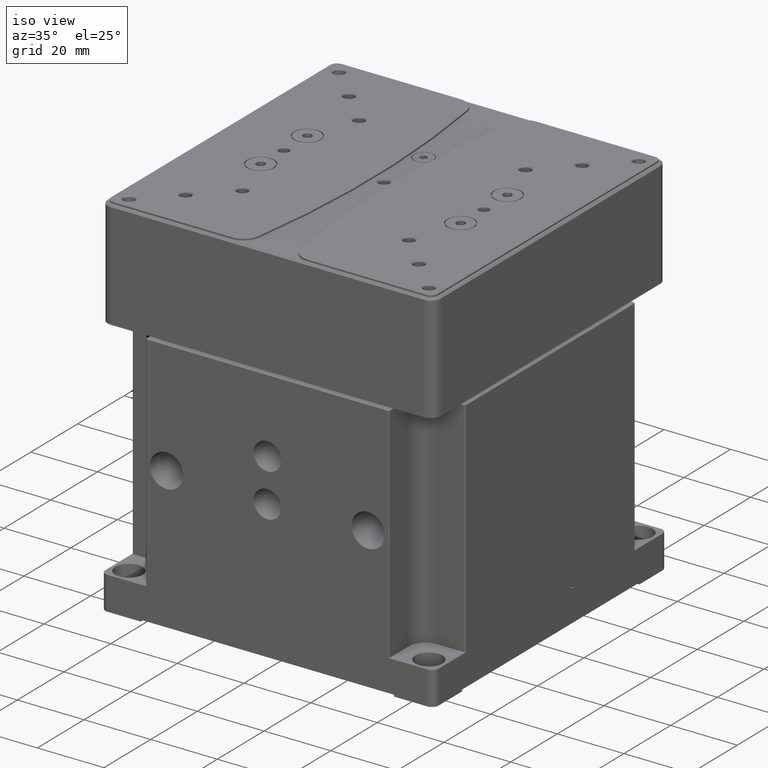
[diagram: clean part render]
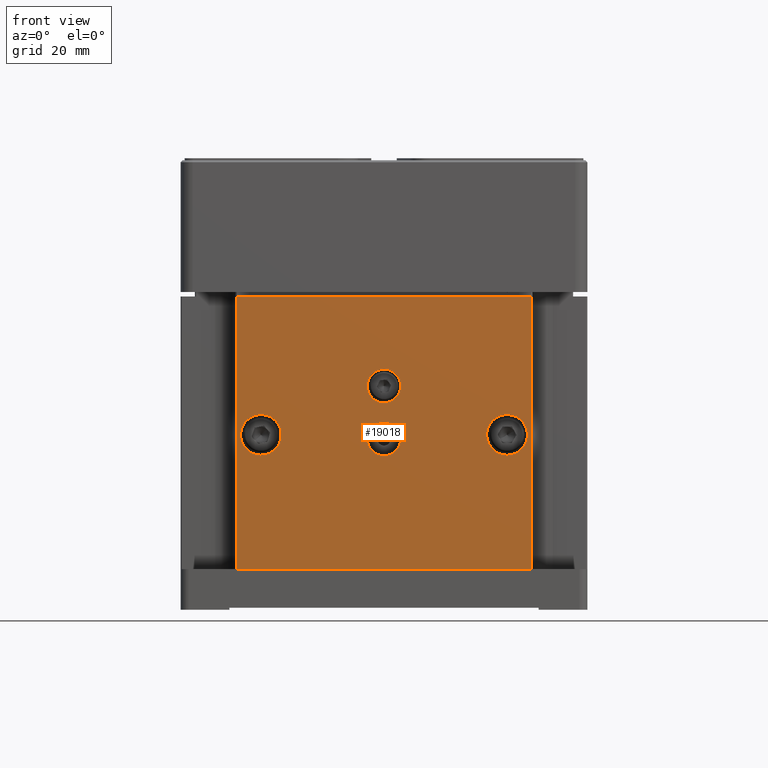
[diagram: tour spotlight — one face highlighted and labeled with its STEP entity id]
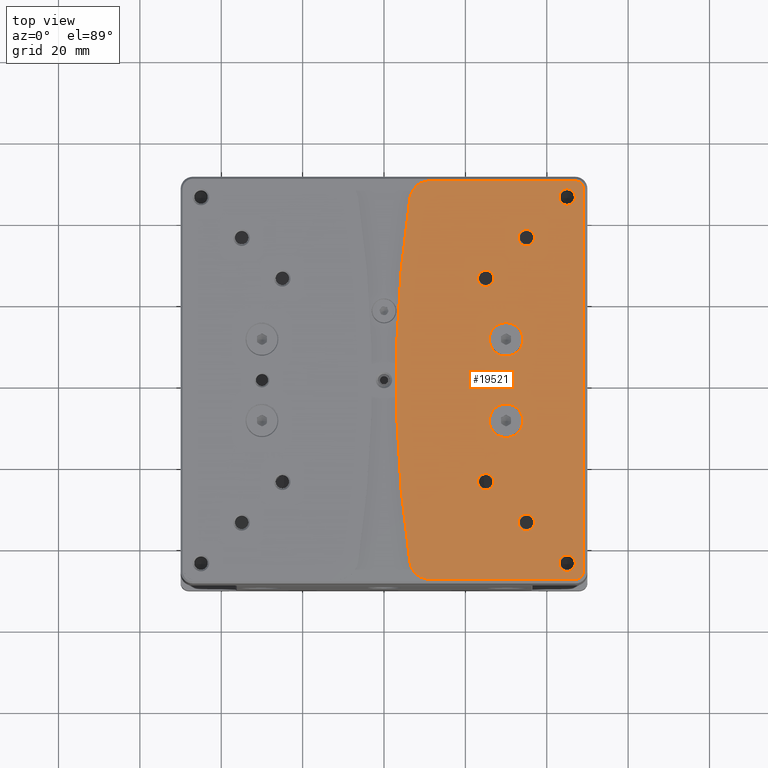
[diagram: tour spotlight — one face highlighted and labeled with its STEP entity id]
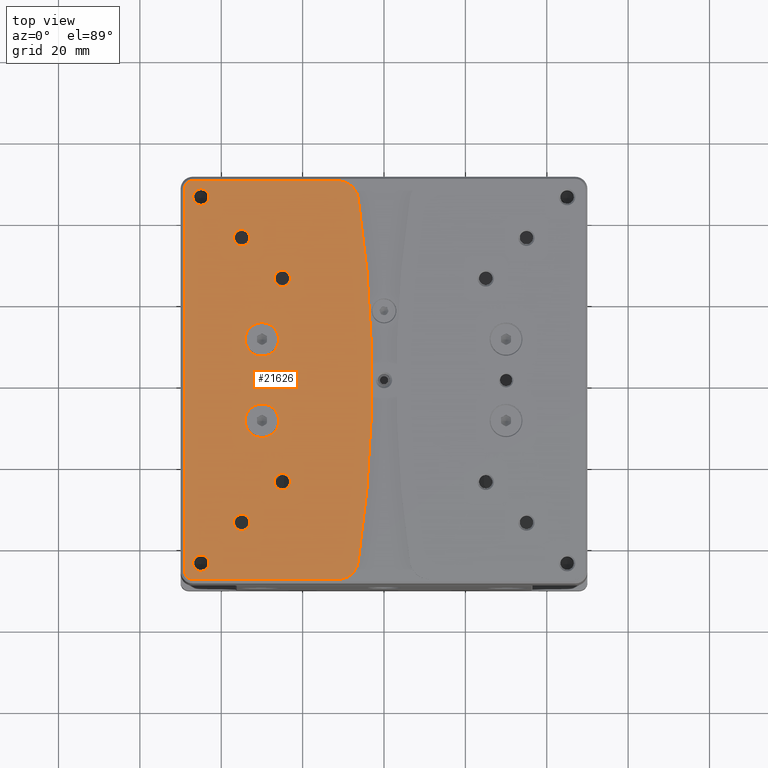
[diagram: tour spotlight — one face highlighted and labeled with its STEP entity id]
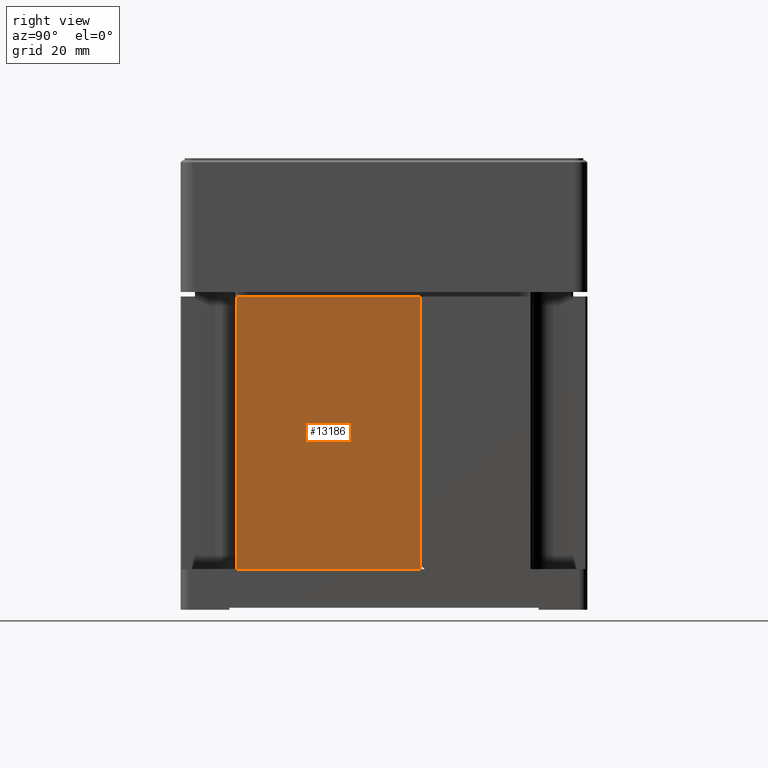
[diagram: tour spotlight — one face highlighted and labeled with its STEP entity id]
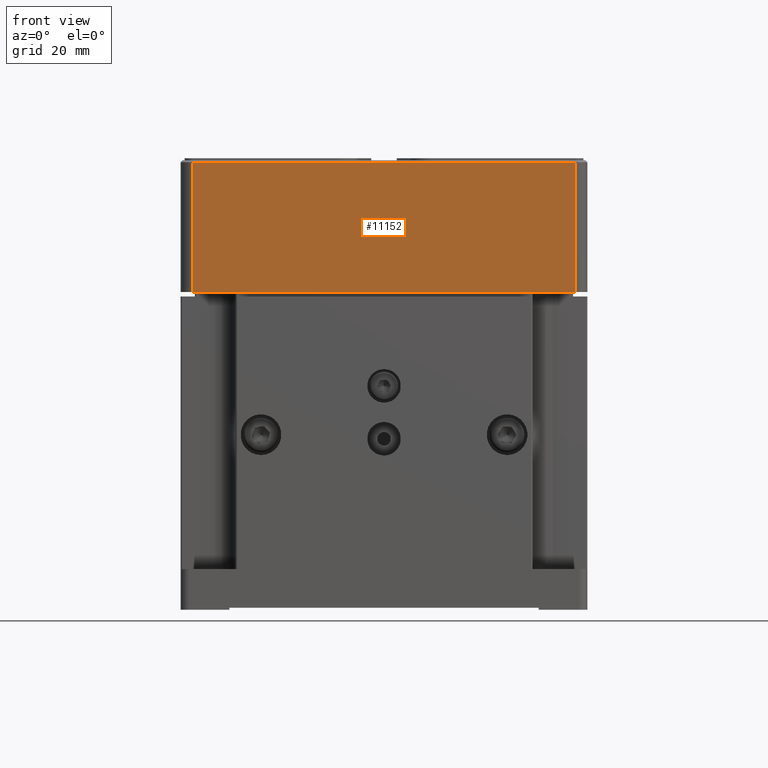
[diagram: tour spotlight — one face highlighted and labeled with its STEP entity id]
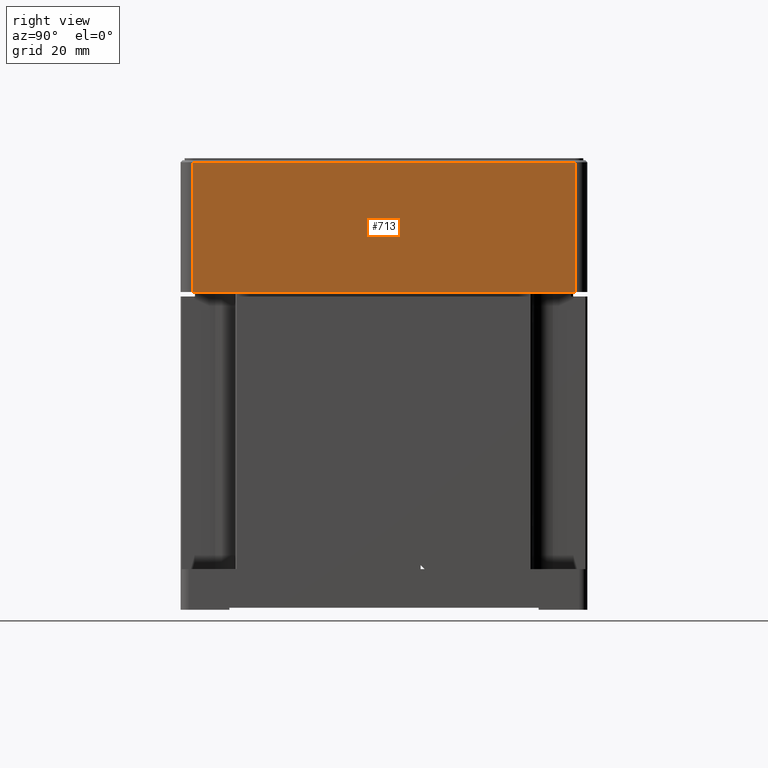
[diagram: tour spotlight — one face highlighted and labeled with its STEP entity id]
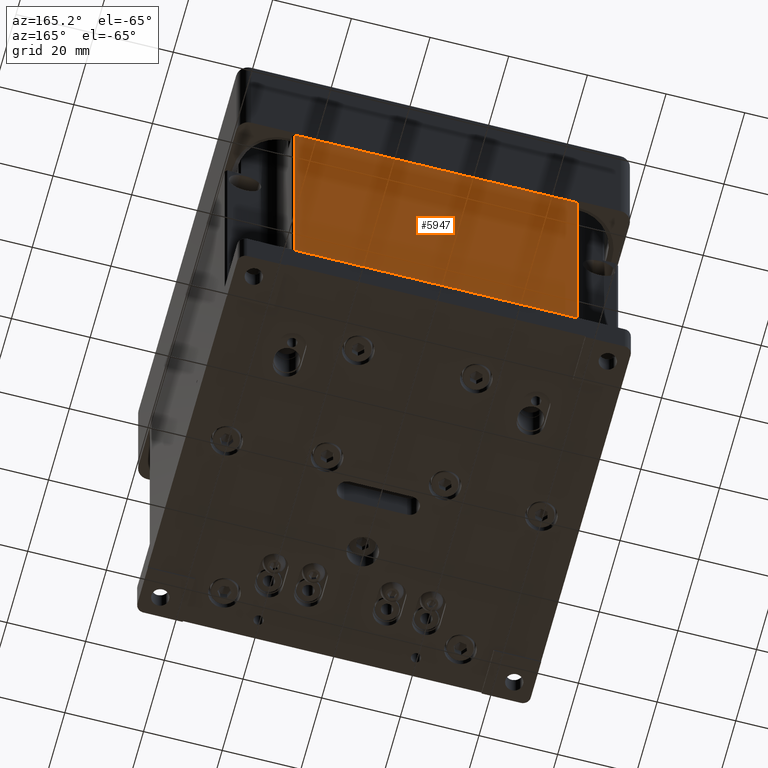
[diagram: tour spotlight — one face highlighted and labeled with its STEP entity id]
A machine part: a face-by-face anatomy tour. The part has 2325 B-rep faces; the first image is the clean iso view, then the 7 largest visible faces are spotlighted one at a time (largest first), each with its STEP entity span.

Face 1 — front view, entity #19018. In plain terms, the highlighted planar face has unit normal (0, -1, 0).
Definition (entity closure, byte-faithful):
#310 = EDGE_CURVE ( 'NONE', #40149, #16376, #10057, .T. ) ;
#439 = LINE ( 'NONE', #22340, #41253 ) ;
#917 = LINE ( 'NONE', #37175, #34587 ) ;
#1653 = CIRCLE ( 'NONE', #32457, 4.999999999999997335 ) ;
#1751 = DIRECTION ( 'NONE',  ( 0.000000000000000000, 0.000000000000000000, -1.000000000000000000 ) ) ;
#2819 = EDGE_CURVE ( 'NONE', #37464, #40894, #37285, .T. ) ;
#2999 = VECTOR ( 'NONE', #18704, 1000.000000000000000 ) ;
#3018 = CARTESIAN_POINT ( 'NONE',  ( 1.734723475976806306E-15, -49.99999999999998579, 32.00000000000000000 ) ) ;
#3583 = DIRECTION ( 'NONE',  ( -1.000000000000000000, -0.000000000000000000, -0.000000000000000000 ) ) ;
#3660 = CARTESIAN_POINT ( 'NONE',  ( -49.99999999999998579, -49.99999999999998579, -9.500000000000000000 ) ) ;
#4269 = EDGE_CURVE ( 'NONE', #40894, #37464, #29187, .T. ) ;
#4348 = LINE ( 'NONE', #18245, #2999 ) ;
#5295 = CARTESIAN_POINT ( 'NONE',  ( 30.25000000000000000, -49.99999999999998579, 33.00000000000000000 ) ) ;
#5333 = EDGE_CURVE ( 'NONE', #29226, #19820, #917, .T. ) ;
#6254 = DIRECTION ( 'NONE',  ( 0.000000000000000000, 0.000000000000000000, -1.000000000000000000 ) ) ;
#6643 = EDGE_CURVE ( 'NONE', #26947, #7413, #1653, .T. ) ;
#6683 = DIRECTION ( 'NONE',  ( 0.000000000000000000, 0.000000000000000000, -1.000000000000000000 ) ) ;
#6762 = DIRECTION ( 'NONE',  ( 0.000000000000000000, 0.000000000000000000, -1.000000000000000000 ) ) ;
#6851 = DIRECTION ( 'NONE',  ( 0.000000000000000000, 0.000000000000000000, -1.000000000000000000 ) ) ;
#7234 = CARTESIAN_POINT ( 'NONE',  ( 36.19999999999999574, -49.99999999999998579, 67.00000000000000000 ) ) ;
#7377 = CIRCLE ( 'NONE', #8901, 4.999999999999997335 ) ;
#7413 = VERTEX_POINT ( 'NONE', #10115 ) ;
#7686 = FACE_OUTER_BOUND ( 'NONE', #35679, .T. ) ;
#7959 = EDGE_LOOP ( 'NONE', ( #12411, #37465 ) ) ;
#8901 = AXIS2_PLACEMENT_3D ( 'NONE', #42619, #28232, #6851 ) ;
#10057 = CIRCLE ( 'NONE', #46167, 4.126999999999998892 ) ;
#10115 = CARTESIAN_POINT ( 'NONE',  ( 30.25000000000000000, -49.99999999999998579, 28.00000000000000355 ) ) ;
#10986 = DIRECTION ( 'NONE',  ( 0.000000000000000000, 1.000000000000000000, 0.000000000000000000 ) ) ;
#11188 = FACE_BOUND ( 'NONE', #45577, .T. ) ;
#11579 = LINE ( 'NONE', #18190, #14312 ) ;
#12005 = AXIS2_PLACEMENT_3D ( 'NONE', #3018, #10986, #25333 ) ;
#12270 = VERTEX_POINT ( 'NONE', #43520 ) ;
#12354 = DIRECTION ( 'NONE',  ( 0.000000000000000000, 1.000000000000000000, 0.000000000000000000 ) ) ;
#12411 = ORIENTED_EDGE ( 'NONE', *, *, #37922, .T. ) ;
#13273 = CARTESIAN_POINT ( 'NONE',  ( 1.224646799147362082E-16, -49.99999999999998579, 45.00000000000000000 ) ) ;
#13469 = CIRCLE ( 'NONE', #24019, 4.999999999999997335 ) ;
#14312 = VECTOR ( 'NONE', #3583, 1000.000000000000000 ) ;
#15441 = EDGE_CURVE ( 'NONE', #42571, #19820, #439, .T. ) ;
#15636 = CARTESIAN_POINT ( 'NONE',  ( 1.734723475976806306E-15, -49.99999999999998579, 27.87300000000000111 ) ) ;
#15998 = ORIENTED_EDGE ( 'NONE', *, *, #310, .T. ) ;
#16133 = EDGE_CURVE ( 'NONE', #12270, #29934, #13469, .T. ) ;
#16227 = AXIS2_PLACEMENT_3D ( 'NONE', #13273, #35421, #6683 ) ;
#16331 = EDGE_CURVE ( 'NONE', #42571, #24163, #4348, .T. ) ;
#16376 = VERTEX_POINT ( 'NONE', #44848 ) ;
#16727 = EDGE_CURVE ( 'NONE', #24163, #29226, #11579, .T. ) ;
#16837 = CARTESIAN_POINT ( 'NONE',  ( -30.25000000000000000, -49.99999999999998579, 38.00000000000000000 ) ) ;
#18190 = CARTESIAN_POINT ( 'NONE',  ( -49.99999999999998579, -49.99999999999998579, 67.00000000000000000 ) ) ;
#18245 = CARTESIAN_POINT ( 'NONE',  ( 36.19999999999998153, -49.99999999999998579, -9.500000000000000000 ) ) ;
#18278 = CARTESIAN_POINT ( 'NONE',  ( 30.25000000000000000, -49.99999999999998579, 33.00000000000000000 ) ) ;
#18560 = CARTESIAN_POINT ( 'NONE',  ( -36.19999999999998153, -50.00000000000000000, 67.00000000000000000 ) ) ;
#18588 = ORIENTED_EDGE ( 'NONE', *, *, #15441, .F. ) ;
#18704 = DIRECTION ( 'NONE',  ( -0.000000000000000000, 0.000000000000000000, 1.000000000000000000 ) ) ;
#19018 = ADVANCED_FACE ( 'NONE', ( #32836, #11188, #25546, #39937, #7686 ), #35919, .T. ) ;
#19665 = DIRECTION ( 'NONE',  ( 0.000000000000000000, -0.000000000000000000, -1.000000000000000000 ) ) ;
#19820 = VERTEX_POINT ( 'NONE', #29126 ) ;
#21657 = CIRCLE ( 'NONE', #33702, 4.999999999999997335 ) ;
#22285 = ORIENTED_EDGE ( 'NONE', *, *, #16133, .T. ) ;
#22340 = CARTESIAN_POINT ( 'NONE',  ( 0.000000000000000000, -49.99999999999998579, 0.000000000000000000 ) ) ;
#22612 = ORIENTED_EDGE ( 'NONE', *, *, #16727, .T. ) ;
#22890 = ORIENTED_EDGE ( 'NONE', *, *, #2819, .T. ) ;
#23166 = CARTESIAN_POINT ( 'NONE',  ( 30.25000000000000000, -49.99999999999998579, 38.00000000000000000 ) ) ;
#24019 = AXIS2_PLACEMENT_3D ( 'NONE', #27901, #34963, #6254 ) ;
#24163 = VERTEX_POINT ( 'NONE', #7234 ) ;
#24253 = EDGE_CURVE ( 'NONE', #16376, #40149, #30788, .T. ) ;
#25333 = DIRECTION ( 'NONE',  ( 0.000000000000000000, 0.000000000000000000, -1.000000000000000000 ) ) ;
#25546 = FACE_BOUND ( 'NONE', #27245, .T. ) ;
#26822 = CARTESIAN_POINT ( 'NONE',  ( 36.19999999999998153, -49.99999999999998579, 0.000000000000000000 ) ) ;
#26947 = VERTEX_POINT ( 'NONE', #23166 ) ;
#27245 = EDGE_LOOP ( 'NONE', ( #22285, #46053 ) ) ;
#27560 = CARTESIAN_POINT ( 'NONE',  ( 1.224646799147362082E-16, -49.99999999999998579, 40.87299999999999756 ) ) ;
#27762 = EDGE_LOOP ( 'NONE', ( #15998, #41009 ) ) ;
#27901 = CARTESIAN_POINT ( 'NONE',  ( -30.25000000000000000, -49.99999999999998579, 33.00000000000000000 ) ) ;
#28232 = DIRECTION ( 'NONE',  ( 0.000000000000000000, 1.000000000000000000, 0.000000000000000000 ) ) ;
#29126 = CARTESIAN_POINT ( 'NONE',  ( -36.19999999999998863, -49.99999999999998579, 4.336808689942017736E-15 ) ) ;
#29187 = CIRCLE ( 'NONE', #42715, 4.126999999999998892 ) ;
#29226 = VERTEX_POINT ( 'NONE', #18560 ) ;
#29552 = CARTESIAN_POINT ( 'NONE',  ( 1.734723475976806306E-15, -49.99999999999998579, 32.00000000000000000 ) ) ;
#29934 = VERTEX_POINT ( 'NONE', #16837 ) ;
#30788 = CIRCLE ( 'NONE', #12005, 4.126999999999998892 ) ;
#32457 = AXIS2_PLACEMENT_3D ( 'NONE', #18278, #36188, #43471 ) ;
#32836 = FACE_BOUND ( 'NONE', #27762, .T. ) ;
#33632 = DIRECTION ( 'NONE',  ( -1.000000000000000000, 0.000000000000000000, -0.000000000000000000 ) ) ;
#33702 = AXIS2_PLACEMENT_3D ( 'NONE', #5295, #12354, #1751 ) ;
#34416 = ORIENTED_EDGE ( 'NONE', *, *, #16331, .T. ) ;
#34587 = VECTOR ( 'NONE', #44494, 1000.000000000000000 ) ;
#34963 = DIRECTION ( 'NONE',  ( 0.000000000000000000, 1.000000000000000000, 0.000000000000000000 ) ) ;
#35421 = DIRECTION ( 'NONE',  ( 0.000000000000000000, 1.000000000000000000, 0.000000000000000000 ) ) ;
#35679 = EDGE_LOOP ( 'NONE', ( #18588, #34416, #22612, #45359 ) ) ;
#35834 = EDGE_CURVE ( 'NONE', #29934, #12270, #7377, .T. ) ;
#35919 = PLANE ( 'NONE',  #40300 ) ;
#36188 = DIRECTION ( 'NONE',  ( 0.000000000000000000, 1.000000000000000000, 0.000000000000000000 ) ) ;
#36445 = CARTESIAN_POINT ( 'NONE',  ( 6.278764139228487068E-16, -49.99999999999998579, 49.12699999999999534 ) ) ;
#37175 = CARTESIAN_POINT ( 'NONE',  ( -36.19999999999999574, -49.99999999999998579, -9.500000000000000000 ) ) ;
#37285 = CIRCLE ( 'NONE', #16227, 4.126999999999998892 ) ;
#37320 = DIRECTION ( 'NONE',  ( 0.000000000000000000, -1.000000000000000000, 0.000000000000000000 ) ) ;
#37464 = VERTEX_POINT ( 'NONE', #36445 ) ;
#37465 = ORIENTED_EDGE ( 'NONE', *, *, #6643, .T. ) ;
#37922 = EDGE_CURVE ( 'NONE', #7413, #26947, #21657, .T. ) ;
#38998 = DIRECTION ( 'NONE',  ( 0.000000000000000000, 1.000000000000000000, 0.000000000000000000 ) ) ;
#39187 = ORIENTED_EDGE ( 'NONE', *, *, #4269, .T. ) ;
#39937 = FACE_BOUND ( 'NONE', #7959, .T. ) ;
#40149 = VERTEX_POINT ( 'NONE', #15636 ) ;
#40300 = AXIS2_PLACEMENT_3D ( 'NONE', #3660, #37320, #19665 ) ;
#40894 = VERTEX_POINT ( 'NONE', #27560 ) ;
#41009 = ORIENTED_EDGE ( 'NONE', *, *, #24253, .T. ) ;
#41253 = VECTOR ( 'NONE', #33632, 1000.000000000000000 ) ;
#42571 = VERTEX_POINT ( 'NONE', #26822 ) ;
#42619 = CARTESIAN_POINT ( 'NONE',  ( -30.25000000000000000, -49.99999999999998579, 33.00000000000000000 ) ) ;
#42715 = AXIS2_PLACEMENT_3D ( 'NONE', #46549, #38998, #6762 ) ;
#43471 = DIRECTION ( 'NONE',  ( 0.000000000000000000, 0.000000000000000000, -1.000000000000000000 ) ) ;
#43520 = CARTESIAN_POINT ( 'NONE',  ( -30.25000000000000000, -49.99999999999998579, 28.00000000000000355 ) ) ;
#43715 = DIRECTION ( 'NONE',  ( 0.000000000000000000, 1.000000000000000000, 0.000000000000000000 ) ) ;
#44164 = DIRECTION ( 'NONE',  ( 0.000000000000000000, 0.000000000000000000, -1.000000000000000000 ) ) ;
#44494 = DIRECTION ( 'NONE',  ( 0.000000000000000000, -0.000000000000000000, -1.000000000000000000 ) ) ;
#44848 = CARTESIAN_POINT ( 'NONE',  ( 2.240135209984918779E-15, -49.99999999999998579, 36.12700000000000244 ) ) ;
#45359 = ORIENTED_EDGE ( 'NONE', *, *, #5333, .T. ) ;
#45577 = EDGE_LOOP ( 'NONE', ( #39187, #22890 ) ) ;
#46053 = ORIENTED_EDGE ( 'NONE', *, *, #35834, .T. ) ;
#46167 = AXIS2_PLACEMENT_3D ( 'NONE', #29552, #43715, #44164 ) ;
#46549 = CARTESIAN_POINT ( 'NONE',  ( 1.224646799147362082E-16, -49.99999999999998579, 45.00000000000000000 ) ) ;

Face 2 — top view, entity #19521. In plain terms, the highlighted planar face has unit normal (0, -0, 1).
Definition (entity closure, byte-faithful):
#91 = DIRECTION ( 'NONE',  ( 0.000000000000000000, -1.000000000000000000, 0.000000000000000000 ) ) ;
#526 = FACE_BOUND ( 'NONE', #6552, .T. ) ;
#549 = CARTESIAN_POINT ( 'NONE',  ( 47.00000000000001421, -46.99999999999997158, 101.0000000000000000 ) ) ;
#744 = EDGE_CURVE ( 'NONE', #12647, #21783, #33441, .T. ) ;
#782 = FACE_BOUND ( 'NONE', #25473, .T. ) ;
#884 = CARTESIAN_POINT ( 'NONE',  ( 11.29981145018096100, 49.00000000000001421, 101.0000000000000000 ) ) ;
#943 = VERTEX_POINT ( 'NONE', #30425 ) ;
#1047 = EDGE_LOOP ( 'NONE', ( #31011, #10257 ) ) ;
#1402 = EDGE_LOOP ( 'NONE', ( #1691, #29740 ) ) ;
#1468 = DIRECTION ( 'NONE',  ( 3.673419846319648462E-39, -7.001238251335375373E-39, 1.000000000000000000 ) ) ;
#1570 = LINE ( 'NONE', #30044, #23964 ) ;
#1628 = CARTESIAN_POINT ( 'NONE',  ( 28.20000000005393304, 2.204364238399187210E-16, 101.0000000000263753 ) ) ;
#1691 = ORIENTED_EDGE ( 'NONE', *, *, #4602, .T. ) ;
#2204 = ORIENTED_EDGE ( 'NONE', *, *, #32497, .T. ) ;
#2249 = AXIS2_PLACEMENT_3D ( 'NONE', #35083, #31317, #2833 ) ;
#2605 = CARTESIAN_POINT ( 'NONE',  ( 30.00000000000002842, -5.874999999999998224, 101.0000000000000000 ) ) ;
#2833 = DIRECTION ( 'NONE',  ( 1.000000000000000000, 0.000000000000000000, 0.000000000000000000 ) ) ;
#2889 = CIRCLE ( 'NONE', #29184, 4.125000000000003553 ) ;
#3174 = CIRCLE ( 'NONE', #46043, 1.799999999946066964 ) ;
#3727 = EDGE_CURVE ( 'NONE', #27834, #25096, #33546, .T. ) ;
#4040 = CARTESIAN_POINT ( 'NONE',  ( 49.00000000000000711, -46.99999999999997158, 101.0000000000000000 ) ) ;
#4041 = DIRECTION ( 'NONE',  ( 1.000000000000000000, 0.000000000000000000, 0.000000000000000000 ) ) ;
#4286 = CARTESIAN_POINT ( 'NONE',  ( 46.99999999999998579, 47.00000000000002842, 101.0000000000000000 ) ) ;
#4412 = AXIS2_PLACEMENT_3D ( 'NONE', #13464, #42217, #20759 ) ;
#4440 = CIRCLE ( 'NONE', #23209, 2.025000000003274181 ) ;
#4485 = DIRECTION ( 'NONE',  ( -0.000000000000000000, -0.000000000000000000, -1.000000000000000000 ) ) ;
#4520 = VERTEX_POINT ( 'NONE', #20303 ) ;
#4565 = ORIENTED_EDGE ( 'NONE', *, *, #32083, .T. ) ;
#4602 = EDGE_CURVE ( 'NONE', #21933, #35752, #45036, .T. ) ;
#4705 = DIRECTION ( 'NONE',  ( 0.000000000000000000, -1.000000000000000000, 0.000000000000000000 ) ) ;
#4780 = ORIENTED_EDGE ( 'NONE', *, *, #43905, .T. ) ;
#4938 = ORIENTED_EDGE ( 'NONE', *, *, #24098, .T. ) ;
#4980 = DIRECTION ( 'NONE',  ( 1.000000000000000000, 0.000000000000000000, 0.000000000000000000 ) ) ;
#5006 = PLANE ( 'NONE',  #7157 ) ;
#5705 = DIRECTION ( 'NONE',  ( -0.000000000000000000, 0.000000000000000000, -1.000000000000000000 ) ) ;
#5779 = VERTEX_POINT ( 'NONE', #4040 ) ;
#6347 = CARTESIAN_POINT ( 'NONE',  ( 25.00000000000002132, -25.00000000000000711, 101.0000000000218563 ) ) ;
#6552 = EDGE_LOOP ( 'NONE', ( #16935, #29959 ) ) ;
#6566 = ORIENTED_EDGE ( 'NONE', *, *, #13400, .T. ) ;
#6640 = CIRCLE ( 'NONE', #8911, 2.025000000037358028 ) ;
#6660 = EDGE_LOOP ( 'NONE', ( #43212, #46299, #7657, #20902, #16947, #4565, #2204, #43091 ) ) ;
#7157 = AXIS2_PLACEMENT_3D ( 'NONE', #33715, #1468, #8765 ) ;
#7210 = EDGE_CURVE ( 'NONE', #943, #34221, #44563, .T. ) ;
#7632 = DIRECTION ( 'NONE',  ( -0.000000000000000000, 0.000000000000000000, -1.000000000000000000 ) ) ;
#7657 = ORIENTED_EDGE ( 'NONE', *, *, #41892, .T. ) ;
#7847 = CARTESIAN_POINT ( 'NONE',  ( 303.0000000000000000, -49.00000000000000000, 101.0000000000000000 ) ) ;
#7881 = CIRCLE ( 'NONE', #34192, 4.125000000000003553 ) ;
#7935 = AXIS2_PLACEMENT_3D ( 'NONE', #32228, #32924, #42847 ) ;
#8342 = CIRCLE ( 'NONE', #21830, 2.024999999971410780 ) ;
#8468 = EDGE_CURVE ( 'NONE', #44937, #5779, #25079, .T. ) ;
#8574 = EDGE_CURVE ( 'NONE', #25768, #9146, #11583, .T. ) ;
#8765 = DIRECTION ( 'NONE',  ( 0.000000000000000000, -1.000000000000000000, -7.001238251335375373E-39 ) ) ;
#8911 = AXIS2_PLACEMENT_3D ( 'NONE', #21245, #38908, #17254 ) ;
#9048 = VERTEX_POINT ( 'NONE', #1628 ) ;
#9077 = EDGE_CURVE ( 'NONE', #35752, #21933, #7881, .T. ) ;
#9146 = VERTEX_POINT ( 'NONE', #16204 ) ;
#9413 = CARTESIAN_POINT ( 'NONE',  ( 27.02500000000329550, -25.00000000000000711, 101.0000000000218563 ) ) ;
#9425 = DIRECTION ( 'NONE',  ( -0.000000000000000000, 0.000000000000000000, -1.000000000000000000 ) ) ;
#9801 = EDGE_CURVE ( 'NONE', #35031, #33401, #40152, .T. ) ;
#10110 = DIRECTION ( 'NONE',  ( 1.000000000000000000, 0.000000000000000000, 0.000000000000000000 ) ) ;
#10179 = CARTESIAN_POINT ( 'NONE',  ( 22.97499999999674714, -25.00000000000000711, 101.0000000000218563 ) ) ;
#10257 = ORIENTED_EDGE ( 'NONE', *, *, #40257, .T. ) ;
#10809 = AXIS2_PLACEMENT_3D ( 'NONE', #549, #46272, #14457 ) ;
#10825 = CARTESIAN_POINT ( 'NONE',  ( 30.00000000000002842, 5.874999999999994671, 101.0000000000000000 ) ) ;
#10882 = AXIS2_PLACEMENT_3D ( 'NONE', #43658, #7632, #36118 ) ;
#11161 = DIRECTION ( 'NONE',  ( -0.000000000000000000, -0.000000000000000000, -1.000000000000000000 ) ) ;
#11387 = CARTESIAN_POINT ( 'NONE',  ( 47.02500000000328839, 45.00000000000000000, 100.9999999999831886 ) ) ;
#11527 = CARTESIAN_POINT ( 'NONE',  ( 303.0000000000000000, 49.00000000000002842, 101.0000000000000000 ) ) ;
#11583 = CIRCLE ( 'NONE', #36404, 4.125000000000003553 ) ;
#12513 = EDGE_LOOP ( 'NONE', ( #4938, #37822 ) ) ;
#12647 = VERTEX_POINT ( 'NONE', #19146 ) ;
#12737 = VERTEX_POINT ( 'NONE', #11387 ) ;
#13237 = AXIS2_PLACEMENT_3D ( 'NONE', #6347, #9425, #23759 ) ;
#13400 = EDGE_CURVE ( 'NONE', #34221, #943, #8342, .T. ) ;
#13413 = CARTESIAN_POINT ( 'NONE',  ( 47.00000000000001421, -48.99999999999998579, 101.0000000000000000 ) ) ;
#13464 = CARTESIAN_POINT ( 'NONE',  ( 30.00000000000002842, -10.00000000000000178, 101.0000000000000000 ) ) ;
#13566 = VECTOR ( 'NONE', #29873, 1000.000000000000000 ) ;
#13606 = CARTESIAN_POINT ( 'NONE',  ( 48.99999999999998579, 47.00000000000002842, 101.0000000000000000 ) ) ;
#14094 = EDGE_LOOP ( 'NONE', ( #31196, #26760 ) ) ;
#14457 = DIRECTION ( 'NONE',  ( 0.000000000000000000, 1.000000000000000000, 0.000000000000000000 ) ) ;
#14653 = LINE ( 'NONE', #7847, #31954 ) ;
#14888 = DIRECTION ( 'NONE',  ( 1.000000000000000000, 2.571848754126763702E-77, -3.673419846319648462E-39 ) ) ;
#15145 = FACE_BOUND ( 'NONE', #22852, .T. ) ;
#15291 = CARTESIAN_POINT ( 'NONE',  ( 30.00000000000002842, 9.999999999999998224, 101.0000000000000000 ) ) ;
#15438 = EDGE_CURVE ( 'NONE', #9146, #25768, #2889, .T. ) ;
#15571 = DIRECTION ( 'NONE',  ( 0.000000000000000000, 1.000000000000000000, 0.000000000000000000 ) ) ;
#15938 = DIRECTION ( 'NONE',  ( -0.000000000000000000, 1.000000000000000000, 7.001238251335375373E-39 ) ) ;
#16004 = CARTESIAN_POINT ( 'NONE',  ( 45.00000000000001421, -45.00000000000000000, 100.9999999999422471 ) ) ;
#16204 = CARTESIAN_POINT ( 'NONE',  ( 30.00000000000002842, 14.12500000000000178, 101.0000000000000000 ) ) ;
#16439 = DIRECTION ( 'NONE',  ( 3.673419846319648462E-39, 7.001238251335375373E-39, -1.000000000000000000 ) ) ;
#16486 = DIRECTION ( 'NONE',  ( -0.000000000000000000, 0.000000000000000000, -1.000000000000000000 ) ) ;
#16935 = ORIENTED_EDGE ( 'NONE', *, *, #33938, .T. ) ;
#16947 = ORIENTED_EDGE ( 'NONE', *, *, #31261, .T. ) ;
#17248 = VERTEX_POINT ( 'NONE', #884 ) ;
#17254 = DIRECTION ( 'NONE',  ( 1.000000000000000000, 0.000000000000000000, 0.000000000000000000 ) ) ;
#17278 = AXIS2_PLACEMENT_3D ( 'NONE', #37970, #5705, #4041 ) ;
#17513 = CARTESIAN_POINT ( 'NONE',  ( 46.99999999999998579, 49.00000000000002842, 101.0000000000000000 ) ) ;
#17523 = CARTESIAN_POINT ( 'NONE',  ( 32.97500000002856524, 35.00000000000000000, 100.9999999999422471 ) ) ;
#17629 = DIRECTION ( 'NONE',  ( -0.000000000000000000, 0.000000000000000000, -1.000000000000000000 ) ) ;
#19146 = CARTESIAN_POINT ( 'NONE',  ( 37.02499999997144187, 35.00000000000000000, 100.9999999999422471 ) ) ;
#19358 = FACE_BOUND ( 'NONE', #35823, .T. ) ;
#19395 = DIRECTION ( 'NONE',  ( -0.000000000000000000, -0.000000000000000000, -1.000000000000000000 ) ) ;
#19521 = ADVANCED_FACE ( 'NONE', ( #26651, #19358, #33019, #526, #22887, #33265, #782, #37266, #15145, #29497 ), #5006, .T. ) ;
#19643 = CARTESIAN_POINT ( 'NONE',  ( 42.97499999999674003, 45.00000000000000000, 100.9999999999831886 ) ) ;
#19967 = DIRECTION ( 'NONE',  ( 0.000000000000000000, -1.000000000000000000, 0.000000000000000000 ) ) ;
#20113 = CIRCLE ( 'NONE', #26117, 2.024999999962334485 ) ;
#20303 = CARTESIAN_POINT ( 'NONE',  ( 6.355740457811121402, 44.74576271186436571, 101.0000000000000000 ) ) ;
#20759 = DIRECTION ( 'NONE',  ( 0.000000000000000000, -1.000000000000000000, 0.000000000000000000 ) ) ;
#20902 = ORIENTED_EDGE ( 'NONE', *, *, #8468, .T. ) ;
#20939 = EDGE_CURVE ( 'NONE', #37718, #41596, #45148, .T. ) ;
#21245 = CARTESIAN_POINT ( 'NONE',  ( 25.00000000000002132, 25.00000000000000000, 101.0000000000559339 ) ) ;
#21311 = EDGE_CURVE ( 'NONE', #36016, #37298, #30120, .T. ) ;
#21756 = CARTESIAN_POINT ( 'NONE',  ( 45.00000000000001421, -45.00000000000000000, 100.9999999999422471 ) ) ;
#21783 = VERTEX_POINT ( 'NONE', #17523 ) ;
#21830 = AXIS2_PLACEMENT_3D ( 'NONE', #46151, #17629, #10110 ) ;
#21933 = VERTEX_POINT ( 'NONE', #25263 ) ;
#22120 = LINE ( 'NONE', #11527, #13566 ) ;
#22720 = DIRECTION ( 'NONE',  ( -0.000000000000000000, 0.000000000000000000, -1.000000000000000000 ) ) ;
#22852 = EDGE_LOOP ( 'NONE', ( #28733, #33160 ) ) ;
#22867 = DIRECTION ( 'NONE',  ( -3.673419846319648462E-39, -7.001238251335375373E-39, 1.000000000000000000 ) ) ;
#22887 = FACE_BOUND ( 'NONE', #23997, .T. ) ;
#23209 = AXIS2_PLACEMENT_3D ( 'NONE', #40629, #22720, #26927 ) ;
#23313 = CARTESIAN_POINT ( 'NONE',  ( 11.29981145018099653, -44.00000000000002132, 101.0000000000000000 ) ) ;
#23759 = DIRECTION ( 'NONE',  ( 1.000000000000000000, 0.000000000000000000, 0.000000000000000000 ) ) ;
#23964 = VECTOR ( 'NONE', #15938, 1000.000000000000000 ) ;
#23997 = EDGE_LOOP ( 'NONE', ( #6566, #45810 ) ) ;
#24043 = AXIS2_PLACEMENT_3D ( 'NONE', #4286, #22867, #15571 ) ;
#24098 = EDGE_CURVE ( 'NONE', #27649, #9048, #3174, .T. ) ;
#24266 = VERTEX_POINT ( 'NONE', #13606 ) ;
#24337 = EDGE_CURVE ( 'NONE', #4520, #36016, #45106, .T. ) ;
#24713 = ORIENTED_EDGE ( 'NONE', *, *, #744, .T. ) ;
#24750 = AXIS2_PLACEMENT_3D ( 'NONE', #33575, #40192, #40423 ) ;
#25079 = CIRCLE ( 'NONE', #10809, 2.000000000000001776 ) ;
#25096 = VERTEX_POINT ( 'NONE', #10179 ) ;
#25194 = CARTESIAN_POINT ( 'NONE',  ( 31.79999999994606696, -3.915998343857614532E-49, 101.0000000000263753 ) ) ;
#25263 = CARTESIAN_POINT ( 'NONE',  ( 30.00000000000002842, -14.12500000000000533, 101.0000000000000000 ) ) ;
#25274 = DIRECTION ( 'NONE',  ( 1.000000000000000000, 0.000000000000000000, 0.000000000000000000 ) ) ;
#25473 = EDGE_LOOP ( 'NONE', ( #24713, #4780 ) ) ;
#25613 = AXIS2_PLACEMENT_3D ( 'NONE', #23313, #30839, #31286 ) ;
#25768 = VERTEX_POINT ( 'NONE', #10825 ) ;
#26117 = AXIS2_PLACEMENT_3D ( 'NONE', #16004, #4485, #40499 ) ;
#26358 = CARTESIAN_POINT ( 'NONE',  ( 11.29981145018096811, 44.00000000000002132, 101.0000000000000000 ) ) ;
#26651 = FACE_BOUND ( 'NONE', #12513, .T. ) ;
#26689 = DIRECTION ( 'NONE',  ( 1.000000000000000000, 0.000000000000000000, 0.000000000000000000 ) ) ;
#26760 = ORIENTED_EDGE ( 'NONE', *, *, #46463, .T. ) ;
#26803 = CARTESIAN_POINT ( 'NONE',  ( 45.00000000000001421, 45.00000000000000000, 100.9999999999831886 ) ) ;
#26904 = CIRCLE ( 'NONE', #36705, 2.025000000003274181 ) ;
#26927 = DIRECTION ( 'NONE',  ( 1.000000000000000000, 0.000000000000000000, 0.000000000000000000 ) ) ;
#27121 = VERTEX_POINT ( 'NONE', #17513 ) ;
#27649 = VERTEX_POINT ( 'NONE', #25194 ) ;
#27834 = VERTEX_POINT ( 'NONE', #9413 ) ;
#28423 = CARTESIAN_POINT ( 'NONE',  ( 37.02499999997144187, -35.00000000000000000, 100.9999999999422471 ) ) ;
#28733 = ORIENTED_EDGE ( 'NONE', *, *, #35994, .T. ) ;
#29184 = AXIS2_PLACEMENT_3D ( 'NONE', #15291, #40485, #4705 ) ;
#29296 = CARTESIAN_POINT ( 'NONE',  ( 45.00000000000001421, 45.00000000000000000, 100.9999999999831886 ) ) ;
#29497 = FACE_OUTER_BOUND ( 'NONE', #6660, .T. ) ;
#29740 = ORIENTED_EDGE ( 'NONE', *, *, #9077, .T. ) ;
#29873 = DIRECTION ( 'NONE',  ( -1.000000000000000000, -2.571848754126763702E-77, 3.673419846319648462E-39 ) ) ;
#29882 = DIRECTION ( 'NONE',  ( -3.673419846319648462E-39, -7.001238251335375373E-39, 1.000000000000000000 ) ) ;
#29959 = ORIENTED_EDGE ( 'NONE', *, *, #9801, .T. ) ;
#30044 = CARTESIAN_POINT ( 'NONE',  ( 48.99999999999998579, 1.873501354054951662E-13, 101.0000000000000000 ) ) ;
#30120 = CIRCLE ( 'NONE', #25613, 4.999999999999997335 ) ;
#30425 = CARTESIAN_POINT ( 'NONE',  ( 32.97500000002862208, -35.00000000000000000, 100.9999999999422471 ) ) ;
#30600 = CARTESIAN_POINT ( 'NONE',  ( 35.00000000000002842, -35.00000000000000000, 100.9999999999422471 ) ) ;
#30839 = DIRECTION ( 'NONE',  ( -3.673419846319648462E-39, -7.001238251335375373E-39, 1.000000000000000000 ) ) ;
#31011 = ORIENTED_EDGE ( 'NONE', *, *, #3727, .T. ) ;
#31196 = ORIENTED_EDGE ( 'NONE', *, *, #20939, .T. ) ;
#31261 = EDGE_CURVE ( 'NONE', #5779, #24266, #1570, .T. ) ;
#31286 = DIRECTION ( 'NONE',  ( 1.040834085586084848E-15, 1.000000000000000000, 0.000000000000000000 ) ) ;
#31317 = DIRECTION ( 'NONE',  ( -0.000000000000000000, 0.000000000000000000, -1.000000000000000000 ) ) ;
#31721 = VERTEX_POINT ( 'NONE', #19643 ) ;
#31954 = VECTOR ( 'NONE', #14888, 1000.000000000000000 ) ;
#31963 = CARTESIAN_POINT ( 'NONE',  ( 11.29981145018099653, -49.00000000000000711, 101.0000000000000000 ) ) ;
#32083 = EDGE_CURVE ( 'NONE', #24266, #27121, #40604, .T. ) ;
#32195 = EDGE_CURVE ( 'NONE', #9048, #27649, #45124, .T. ) ;
#32228 = CARTESIAN_POINT ( 'NONE',  ( 35.00000000000000000, 35.00000000000000000, 100.9999999999422471 ) ) ;
#32349 = DIRECTION ( 'NONE',  ( 3.673419846319648462E-39, 7.001238251335375373E-39, -1.000000000000000000 ) ) ;
#32497 = EDGE_CURVE ( 'NONE', #27121, #17248, #22120, .T. ) ;
#32924 = DIRECTION ( 'NONE',  ( -0.000000000000000000, 0.000000000000000000, -1.000000000000000000 ) ) ;
#32938 = AXIS2_PLACEMENT_3D ( 'NONE', #26803, #33884, #34564 ) ;
#33019 = FACE_BOUND ( 'NONE', #1402, .T. ) ;
#33160 = ORIENTED_EDGE ( 'NONE', *, *, #46187, .T. ) ;
#33235 = CARTESIAN_POINT ( 'NONE',  ( 30.00000000000000000, -3.915998343857614532E-49, 101.0000000000263753 ) ) ;
#33265 = FACE_BOUND ( 'NONE', #1047, .T. ) ;
#33401 = VERTEX_POINT ( 'NONE', #44337 ) ;
#33441 = CIRCLE ( 'NONE', #10882, 2.024999999971438314 ) ;
#33546 = CIRCLE ( 'NONE', #13237, 2.025000000003274181 ) ;
#33575 = CARTESIAN_POINT ( 'NONE',  ( 303.0000000000000000, 1.873501354054951662E-13, 101.0000000000000000 ) ) ;
#33715 = CARTESIAN_POINT ( 'NONE',  ( 303.0000000000000000, 1.873501354054951662E-13, 101.0000000000000000 ) ) ;
#33865 = EDGE_CURVE ( 'NONE', #17248, #4520, #38899, .T. ) ;
#33884 = DIRECTION ( 'NONE',  ( -0.000000000000000000, -0.000000000000000000, -1.000000000000000000 ) ) ;
#33938 = EDGE_CURVE ( 'NONE', #33401, #35031, #20113, .T. ) ;
#34192 = AXIS2_PLACEMENT_3D ( 'NONE', #34319, #16439, #19967 ) ;
#34221 = VERTEX_POINT ( 'NONE', #28423 ) ;
#34319 = CARTESIAN_POINT ( 'NONE',  ( 30.00000000000002842, -10.00000000000000178, 101.0000000000000000 ) ) ;
#34367 = DIRECTION ( 'NONE',  ( 1.000000000000000000, 0.000000000000000000, 0.000000000000000000 ) ) ;
#34564 = DIRECTION ( 'NONE',  ( 1.000000000000000000, 0.000000000000000000, 0.000000000000000000 ) ) ;
#35031 = VERTEX_POINT ( 'NONE', #37185 ) ;
#35083 = CARTESIAN_POINT ( 'NONE',  ( 30.00000000000000000, -3.915998343857614532E-49, 101.0000000000263753 ) ) ;
#35127 = AXIS2_PLACEMENT_3D ( 'NONE', #26358, #29882, #44522 ) ;
#35752 = VERTEX_POINT ( 'NONE', #2605 ) ;
#35823 = EDGE_LOOP ( 'NONE', ( #37740, #37824 ) ) ;
#35886 = CARTESIAN_POINT ( 'NONE',  ( 30.00000000000002842, 9.999999999999998224, 101.0000000000000000 ) ) ;
#35994 = EDGE_CURVE ( 'NONE', #12737, #31721, #41968, .T. ) ;
#36016 = VERTEX_POINT ( 'NONE', #40738 ) ;
#36118 = DIRECTION ( 'NONE',  ( 1.000000000000000000, 0.000000000000000000, 0.000000000000000000 ) ) ;
#36404 = AXIS2_PLACEMENT_3D ( 'NONE', #35886, #32349, #91 ) ;
#36705 = AXIS2_PLACEMENT_3D ( 'NONE', #29296, #19395, #26689 ) ;
#37185 = CARTESIAN_POINT ( 'NONE',  ( 42.97500000003767440, -45.00000000000000000, 100.9999999999422471 ) ) ;
#37239 = DIRECTION ( 'NONE',  ( -0.000000000000000000, 0.000000000000000000, -1.000000000000000000 ) ) ;
#37266 = FACE_BOUND ( 'NONE', #14094, .T. ) ;
#37298 = VERTEX_POINT ( 'NONE', #31963 ) ;
#37718 = VERTEX_POINT ( 'NONE', #46297 ) ;
#37740 = ORIENTED_EDGE ( 'NONE', *, *, #8574, .T. ) ;
#37822 = ORIENTED_EDGE ( 'NONE', *, *, #32195, .T. ) ;
#37824 = ORIENTED_EDGE ( 'NONE', *, *, #15438, .T. ) ;
#37970 = CARTESIAN_POINT ( 'NONE',  ( 25.00000000000002132, 25.00000000000000000, 101.0000000000559339 ) ) ;
#38899 = CIRCLE ( 'NONE', #35127, 4.999999999999997335 ) ;
#38908 = DIRECTION ( 'NONE',  ( -0.000000000000000000, 0.000000000000000000, -1.000000000000000000 ) ) ;
#39397 = AXIS2_PLACEMENT_3D ( 'NONE', #21756, #11161, #25274 ) ;
#39515 = CIRCLE ( 'NONE', #7935, 2.024999999971438314 ) ;
#40152 = CIRCLE ( 'NONE', #39397, 2.024999999962334485 ) ;
#40161 = CARTESIAN_POINT ( 'NONE',  ( 22.97499999996266240, 25.00000000000000000, 101.0000000000559339 ) ) ;
#40192 = DIRECTION ( 'NONE',  ( -3.673419846319648462E-39, -7.001238251335375373E-39, 1.000000000000000000 ) ) ;
#40257 = EDGE_CURVE ( 'NONE', #25096, #27834, #4440, .T. ) ;
#40423 = DIRECTION ( 'NONE',  ( 0.000000000000000000, 1.000000000000000000, 0.000000000000000000 ) ) ;
#40485 = DIRECTION ( 'NONE',  ( 3.673419846319648462E-39, 7.001238251335375373E-39, -1.000000000000000000 ) ) ;
#40499 = DIRECTION ( 'NONE',  ( 1.000000000000000000, 0.000000000000000000, 0.000000000000000000 ) ) ;
#40604 = CIRCLE ( 'NONE', #24043, 2.000000000000001776 ) ;
#40629 = CARTESIAN_POINT ( 'NONE',  ( 25.00000000000002132, -25.00000000000000711, 101.0000000000218563 ) ) ;
#40738 = CARTESIAN_POINT ( 'NONE',  ( 6.355740457811180910, -44.74576271186442256, 101.0000000000000000 ) ) ;
#40786 = AXIS2_PLACEMENT_3D ( 'NONE', #30600, #16486, #34367 ) ;
#41596 = VERTEX_POINT ( 'NONE', #40161 ) ;
#41892 = EDGE_CURVE ( 'NONE', #37298, #44937, #14653, .T. ) ;
#41968 = CIRCLE ( 'NONE', #32938, 2.025000000003274181 ) ;
#42217 = DIRECTION ( 'NONE',  ( 3.673419846319648462E-39, 7.001238251335375373E-39, -1.000000000000000000 ) ) ;
#42847 = DIRECTION ( 'NONE',  ( 1.000000000000000000, 0.000000000000000000, 0.000000000000000000 ) ) ;
#43091 = ORIENTED_EDGE ( 'NONE', *, *, #33865, .T. ) ;
#43212 = ORIENTED_EDGE ( 'NONE', *, *, #24337, .T. ) ;
#43658 = CARTESIAN_POINT ( 'NONE',  ( 35.00000000000000000, 35.00000000000000000, 100.9999999999422471 ) ) ;
#43905 = EDGE_CURVE ( 'NONE', #21783, #12647, #39515, .T. ) ;
#44337 = CARTESIAN_POINT ( 'NONE',  ( 47.02499999996234692, -45.00000000000000000, 100.9999999999422471 ) ) ;
#44522 = DIRECTION ( 'NONE',  ( -1.734723475976808080E-15, 1.000000000000000000, 0.000000000000000000 ) ) ;
#44563 = CIRCLE ( 'NONE', #40786, 2.024999999971410780 ) ;
#44937 = VERTEX_POINT ( 'NONE', #13413 ) ;
#45036 = CIRCLE ( 'NONE', #4412, 4.125000000000003553 ) ;
#45106 = CIRCLE ( 'NONE', #24750, 299.9999999999999432 ) ;
#45124 = CIRCLE ( 'NONE', #2249, 1.799999999946066964 ) ;
#45148 = CIRCLE ( 'NONE', #17278, 2.025000000037358028 ) ;
#45810 = ORIENTED_EDGE ( 'NONE', *, *, #7210, .T. ) ;
#46043 = AXIS2_PLACEMENT_3D ( 'NONE', #33235, #37239, #4980 ) ;
#46151 = CARTESIAN_POINT ( 'NONE',  ( 35.00000000000002842, -35.00000000000000000, 100.9999999999422471 ) ) ;
#46187 = EDGE_CURVE ( 'NONE', #31721, #12737, #26904, .T. ) ;
#46272 = DIRECTION ( 'NONE',  ( -3.673419846319648462E-39, -7.001238251335375373E-39, 1.000000000000000000 ) ) ;
#46297 = CARTESIAN_POINT ( 'NONE',  ( 27.02500000003738023, 25.00000000000000000, 101.0000000000559339 ) ) ;
#46299 = ORIENTED_EDGE ( 'NONE', *, *, #21311, .T. ) ;
#46463 = EDGE_CURVE ( 'NONE', #41596, #37718, #6640, .T. ) ;

Face 3 — top view, entity #21626. In plain terms, the highlighted planar face has unit normal (-0, 0, -1).
Definition (entity closure, byte-faithful):
#375 = CARTESIAN_POINT ( 'NONE',  ( -11.29981145018096811, 44.00000000000002132, 101.0000000000000000 ) ) ;
#488 = CARTESIAN_POINT ( 'NONE',  ( -34.99999999999999289, -32.97499999996491482, 101.0000000000559197 ) ) ;
#774 = DIRECTION ( 'NONE',  ( 1.000000000000000000, 0.000000000000000000, 0.000000000000000000 ) ) ;
#808 = EDGE_CURVE ( 'NONE', #35192, #12905, #21395, .T. ) ;
#1125 = EDGE_CURVE ( 'NONE', #46164, #12514, #14643, .T. ) ;
#1223 = VERTEX_POINT ( 'NONE', #4501 ) ;
#1320 = EDGE_CURVE ( 'NONE', #21278, #39285, #4145, .T. ) ;
#1526 = ORIENTED_EDGE ( 'NONE', *, *, #27742, .F. ) ;
#1860 = VERTEX_POINT ( 'NONE', #37267 ) ;
#1885 = AXIS2_PLACEMENT_3D ( 'NONE', #33714, #40334, #36341 ) ;
#1891 = DIRECTION ( 'NONE',  ( -0.000000000000000000, 0.000000000000000000, -1.000000000000000000 ) ) ;
#2094 = CARTESIAN_POINT ( 'NONE',  ( -29.99999999999997158, -5.874999999999998224, 101.0000000000000000 ) ) ;
#2161 = EDGE_LOOP ( 'NONE', ( #7607, #12437 ) ) ;
#2194 = CARTESIAN_POINT ( 'NONE',  ( -24.99999999999997513, 25.00000000000000355, 100.9999999999422471 ) ) ;
#2610 = EDGE_CURVE ( 'NONE', #44015, #8302, #21004, .T. ) ;
#2836 = AXIS2_PLACEMENT_3D ( 'NONE', #6142, #41488, #34627 ) ;
#3473 = DIRECTION ( 'NONE',  ( 3.673419846319648462E-39, 7.001238251335375373E-39, -1.000000000000000000 ) ) ;
#3924 = DIRECTION ( 'NONE',  ( -0.000000000000000000, 0.000000000000000000, -1.000000000000000000 ) ) ;
#4145 = CIRCLE ( 'NONE', #28186, 5.000000000000004441 ) ;
#4310 = CARTESIAN_POINT ( 'NONE',  ( -11.29981145018096811, 49.00000000000001421, 101.0000000000000000 ) ) ;
#4501 = CARTESIAN_POINT ( 'NONE',  ( -29.99999999999997158, 5.874999999999994671, 101.0000000000000000 ) ) ;
#4600 = DIRECTION ( 'NONE',  ( 1.000000000000000000, 0.000000000000000000, 0.000000000000000000 ) ) ;
#4715 = VERTEX_POINT ( 'NONE', #32282 ) ;
#4814 = VERTEX_POINT ( 'NONE', #488 ) ;
#4964 = ORIENTED_EDGE ( 'NONE', *, *, #5450, .F. ) ;
#4981 = ORIENTED_EDGE ( 'NONE', *, *, #1320, .F. ) ;
#5076 = CARTESIAN_POINT ( 'NONE',  ( -303.0000000000000000, 1.734723475976807094E-15, 101.0000000000000000 ) ) ;
#5106 = AXIS2_PLACEMENT_3D ( 'NONE', #20651, #27479, #16431 ) ;
#5253 = CIRCLE ( 'NONE', #25530, 2.024999999969141928 ) ;
#5450 = EDGE_CURVE ( 'NONE', #12997, #44437, #29145, .T. ) ;
#5548 = FACE_BOUND ( 'NONE', #39712, .T. ) ;
#5930 = CIRCLE ( 'NONE', #8192, 2.025000000035110048 ) ;
#5950 = DIRECTION ( 'NONE',  ( 1.000000000000000000, 0.000000000000000000, 0.000000000000000000 ) ) ;
#6142 = CARTESIAN_POINT ( 'NONE',  ( -29.99999999999997158, 9.999999999999998224, 101.0000000000000000 ) ) ;
#6161 = AXIS2_PLACEMENT_3D ( 'NONE', #30961, #20587, #32039 ) ;
#6375 = ORIENTED_EDGE ( 'NONE', *, *, #31459, .T. ) ;
#7460 = ORIENTED_EDGE ( 'NONE', *, *, #41942, .F. ) ;
#7607 = ORIENTED_EDGE ( 'NONE', *, *, #23667, .T. ) ;
#7887 = CARTESIAN_POINT ( 'NONE',  ( -24.99999999999997513, 25.00000000000000355, 100.9999999999422471 ) ) ;
#7892 = CARTESIAN_POINT ( 'NONE',  ( -48.99999999999998579, 1.734723475976807094E-15, 101.0000000000000000 ) ) ;
#8012 = EDGE_LOOP ( 'NONE', ( #30236, #31463 ) ) ;
#8192 = AXIS2_PLACEMENT_3D ( 'NONE', #34501, #23668, #24362 ) ;
#8302 = VERTEX_POINT ( 'NONE', #30971 ) ;
#8425 = VERTEX_POINT ( 'NONE', #39903 ) ;
#8457 = CIRCLE ( 'NONE', #43798, 2.024999999930499062 ) ;
#8782 = LINE ( 'NONE', #12313, #19557 ) ;
#8838 = CIRCLE ( 'NONE', #23869, 2.025000000035095837 ) ;
#9229 = VERTEX_POINT ( 'NONE', #14038 ) ;
#9368 = EDGE_CURVE ( 'NONE', #11298, #21911, #43138, .T. ) ;
#9748 = CARTESIAN_POINT ( 'NONE',  ( -303.0000000000000000, -49.00000000000000000, 101.0000000000000000 ) ) ;
#9776 = AXIS2_PLACEMENT_3D ( 'NONE', #44999, #12714, #37913 ) ;
#10295 = AXIS2_PLACEMENT_3D ( 'NONE', #17377, #3473, #39025 ) ;
#10424 = VERTEX_POINT ( 'NONE', #36936 ) ;
#11209 = AXIS2_PLACEMENT_3D ( 'NONE', #30366, #37903, #37689 ) ;
#11298 = VERTEX_POINT ( 'NONE', #4310 ) ;
#11402 = CIRCLE ( 'NONE', #6161, 4.125000000000003553 ) ;
#11752 = CARTESIAN_POINT ( 'NONE',  ( -46.99999999999998579, 49.00000000000000000, 101.0000000000000000 ) ) ;
#11998 = ORIENTED_EDGE ( 'NONE', *, *, #38302, .T. ) ;
#12226 = ORIENTED_EDGE ( 'NONE', *, *, #39091, .T. ) ;
#12313 = CARTESIAN_POINT ( 'NONE',  ( -303.0000000000000000, 49.00000000000000000, 101.0000000000000000 ) ) ;
#12343 = CARTESIAN_POINT ( 'NONE',  ( -11.29981145018099653, -49.00000000000000000, 101.0000000000000000 ) ) ;
#12437 = ORIENTED_EDGE ( 'NONE', *, *, #33834, .T. ) ;
#12514 = VERTEX_POINT ( 'NONE', #20583 ) ;
#12594 = FACE_BOUND ( 'NONE', #38627, .T. ) ;
#12714 = DIRECTION ( 'NONE',  ( 0.000000000000000000, -0.000000000000000000, 1.000000000000000000 ) ) ;
#12905 = VERTEX_POINT ( 'NONE', #45294 ) ;
#12939 = EDGE_CURVE ( 'NONE', #35901, #11298, #8782, .T. ) ;
#12997 = VERTEX_POINT ( 'NONE', #38441 ) ;
#13326 = EDGE_CURVE ( 'NONE', #12905, #35192, #44414, .T. ) ;
#13449 = CARTESIAN_POINT ( 'NONE',  ( -30.00000000000000000, 4.044057444042085575E-49, 100.9999999999718057 ) ) ;
#13839 = CARTESIAN_POINT ( 'NONE',  ( -30.00000000000000000, 4.044057444042085575E-49, 100.9999999999718057 ) ) ;
#14028 = ORIENTED_EDGE ( 'NONE', *, *, #13326, .F. ) ;
#14038 = CARTESIAN_POINT ( 'NONE',  ( -27.02499999996911484, 25.00000000000000355, 100.9999999999422471 ) ) ;
#14151 = VERTEX_POINT ( 'NONE', #22102 ) ;
#14201 = CARTESIAN_POINT ( 'NONE',  ( -6.355740457811134725, 44.74576271186440835, 101.0000000000000000 ) ) ;
#14207 = VERTEX_POINT ( 'NONE', #40728 ) ;
#14643 = CIRCLE ( 'NONE', #38721, 1.800000000002910383 ) ;
#14785 = FACE_BOUND ( 'NONE', #2161, .T. ) ;
#14847 = ORIENTED_EDGE ( 'NONE', *, *, #34710, .T. ) ;
#14951 = AXIS2_PLACEMENT_3D ( 'NONE', #25720, #33009, #774 ) ;
#15150 = CARTESIAN_POINT ( 'NONE',  ( -24.99999999999999289, -25.00000000000000711, 100.9999999999763531 ) ) ;
#15235 = DIRECTION ( 'NONE',  ( 3.673419846319648462E-39, 7.001238251335375373E-39, -1.000000000000000000 ) ) ;
#15547 = AXIS2_PLACEMENT_3D ( 'NONE', #2194, #16317, #5950 ) ;
#15949 = AXIS2_PLACEMENT_3D ( 'NONE', #37080, #22913, #19160 ) ;
#16317 = DIRECTION ( 'NONE',  ( -0.000000000000000000, 0.000000000000000000, -1.000000000000000000 ) ) ;
#16431 = DIRECTION ( 'NONE',  ( 0.000000000000000000, 1.000000000000000000, 0.000000000000000000 ) ) ;
#16514 = AXIS2_PLACEMENT_3D ( 'NONE', #26017, #3924, #36408 ) ;
#16564 = VECTOR ( 'NONE', #18712, 1000.000000000000000 ) ;
#16662 = EDGE_LOOP ( 'NONE', ( #14028, #46121 ) ) ;
#17075 = EDGE_CURVE ( 'NONE', #10424, #18433, #28208, .T. ) ;
#17136 = DIRECTION ( 'NONE',  ( 1.000000000000000000, 0.000000000000000000, 0.000000000000000000 ) ) ;
#17377 = CARTESIAN_POINT ( 'NONE',  ( -303.0000000000000000, 1.734723475976807094E-15, 101.0000000000000000 ) ) ;
#17664 = CARTESIAN_POINT ( 'NONE',  ( -34.99999999999999289, -35.00000000000001421, 101.0000000000559339 ) ) ;
#18369 = DIRECTION ( 'NONE',  ( 0.000000000000000000, -1.000000000000000000, 0.000000000000000000 ) ) ;
#18414 = VERTEX_POINT ( 'NONE', #2094 ) ;
#18433 = VERTEX_POINT ( 'NONE', #30823 ) ;
#18672 = DIRECTION ( 'NONE',  ( 1.000000000000000000, 0.000000000000000000, 0.000000000000000000 ) ) ;
#18712 = DIRECTION ( 'NONE',  ( 0.000000000000000000, 1.000000000000000000, 7.001238251335375373E-39 ) ) ;
#19136 = ORIENTED_EDGE ( 'NONE', *, *, #35630, .F. ) ;
#19160 = DIRECTION ( 'NONE',  ( 0.000000000000000000, -1.000000000000000000, 6.853228546950092360E-15 ) ) ;
#19557 = VECTOR ( 'NONE', #26661, 1000.000000000000000 ) ;
#20075 = ORIENTED_EDGE ( 'NONE', *, *, #29013, .T. ) ;
#20258 = CIRCLE ( 'NONE', #24747, 2.024999999930499062 ) ;
#20340 = DIRECTION ( 'NONE',  ( -1.000000000000000000, -2.571848754126763702E-77, 3.673419846319648462E-39 ) ) ;
#20583 = CARTESIAN_POINT ( 'NONE',  ( -28.19999999999708962, 4.044057444042085575E-49, 100.9999999999718057 ) ) ;
#20587 = DIRECTION ( 'NONE',  ( -3.673419846319648462E-39, -7.001238251335375373E-39, 1.000000000000000000 ) ) ;
#20636 = VERTEX_POINT ( 'NONE', #46475 ) ;
#20651 = CARTESIAN_POINT ( 'NONE',  ( -46.99999999999998579, -46.99999999999999289, 101.0000000000000000 ) ) ;
#20925 = VECTOR ( 'NONE', #20340, 1000.000000000000000 ) ;
#21004 = CIRCLE ( 'NONE', #16514, 2.024999999930499062 ) ;
#21278 = VERTEX_POINT ( 'NONE', #27079 ) ;
#21361 = DIRECTION ( 'NONE',  ( 0.000000000000000000, -0.000000000000000000, 1.000000000000000000 ) ) ;
#21395 = CIRCLE ( 'NONE', #39460, 2.025000000003274181 ) ;
#21626 = ADVANCED_FACE ( 'NONE', ( #37565, #30487, #44881, #25630, #12594, #5548, #30714, #14785, #29135, #26499 ), #21868, .F. ) ;
#21868 = PLANE ( 'NONE',  #45214 ) ;
#21911 = VERTEX_POINT ( 'NONE', #14201 ) ;
#22102 = CARTESIAN_POINT ( 'NONE',  ( -29.99999999999997158, 14.12500000000000178, 101.0000000000000000 ) ) ;
#22132 = EDGE_CURVE ( 'NONE', #1860, #18414, #36004, .T. ) ;
#22224 = DIRECTION ( 'NONE',  ( -0.000000000000000000, 0.000000000000000000, -1.000000000000000000 ) ) ;
#22913 = DIRECTION ( 'NONE',  ( -0.000000000000000000, -3.426614273571234357E-15, -1.000000000000000000 ) ) ;
#23667 = EDGE_CURVE ( 'NONE', #14207, #4814, #24202, .T. ) ;
#23668 = DIRECTION ( 'NONE',  ( -0.000000000000000000, 0.000000000000000000, -1.000000000000000000 ) ) ;
#23675 = ORIENTED_EDGE ( 'NONE', *, *, #12939, .F. ) ;
#23869 = AXIS2_PLACEMENT_3D ( 'NONE', #17664, #32021, #46407 ) ;
#24202 = CIRCLE ( 'NONE', #15949, 2.025000000035095837 ) ;
#24362 = DIRECTION ( 'NONE',  ( 1.000000000000000000, 0.000000000000000000, 0.000000000000000000 ) ) ;
#24747 = AXIS2_PLACEMENT_3D ( 'NONE', #42625, #24949, #46400 ) ;
#24841 = ORIENTED_EDGE ( 'NONE', *, *, #36218, .F. ) ;
#24883 = CARTESIAN_POINT ( 'NONE',  ( -48.99999999999997868, -47.00000000000000000, 101.0000000000000000 ) ) ;
#24918 = ORIENTED_EDGE ( 'NONE', *, *, #38143, .F. ) ;
#24949 = DIRECTION ( 'NONE',  ( -0.000000000000000000, 0.000000000000000000, -1.000000000000000000 ) ) ;
#25164 = AXIS2_PLACEMENT_3D ( 'NONE', #375, #15235, #39481 ) ;
#25483 = CIRCLE ( 'NONE', #11209, 2.000000000000001776 ) ;
#25530 = AXIS2_PLACEMENT_3D ( 'NONE', #7887, #22224, #4600 ) ;
#25630 = FACE_BOUND ( 'NONE', #35448, .T. ) ;
#25720 = CARTESIAN_POINT ( 'NONE',  ( -35.00000000000000000, 35.00000000000000000, 101.0000000000559339 ) ) ;
#26017 = CARTESIAN_POINT ( 'NONE',  ( -44.99999999999998579, -45.00000000000000000, 100.9999999999422471 ) ) ;
#26092 = EDGE_LOOP ( 'NONE', ( #45440, #36486 ) ) ;
#26499 = FACE_BOUND ( 'NONE', #16662, .T. ) ;
#26661 = DIRECTION ( 'NONE',  ( 1.000000000000000000, 2.571848754126763702E-77, -3.673419846319648462E-39 ) ) ;
#26957 = DIRECTION ( 'NONE',  ( 0.000000000000000000, 1.000000000000000000, 7.001238251335375373E-39 ) ) ;
#27079 = CARTESIAN_POINT ( 'NONE',  ( -6.355740457811148936, -44.74576271186442256, 101.0000000000000000 ) ) ;
#27479 = DIRECTION ( 'NONE',  ( 3.673419846319648462E-39, 7.001238251335375373E-39, -1.000000000000000000 ) ) ;
#27644 = CIRCLE ( 'NONE', #43464, 1.800000000002910383 ) ;
#27742 = EDGE_CURVE ( 'NONE', #8425, #35901, #25483, .T. ) ;
#28186 = AXIS2_PLACEMENT_3D ( 'NONE', #36048, #33211, #40064 ) ;
#28208 = CIRCLE ( 'NONE', #46294, 2.024999999930499062 ) ;
#28637 = EDGE_CURVE ( 'NONE', #18414, #1860, #11402, .T. ) ;
#28946 = CARTESIAN_POINT ( 'NONE',  ( -29.99999999999997158, -10.00000000000000178, 101.0000000000000000 ) ) ;
#29013 = EDGE_CURVE ( 'NONE', #8302, #44015, #8457, .T. ) ;
#29135 = FACE_OUTER_BOUND ( 'NONE', #34593, .T. ) ;
#29145 = CIRCLE ( 'NONE', #5106, 2.000000000000001776 ) ;
#29219 = CIRCLE ( 'NONE', #14951, 2.025000000035110048 ) ;
#29721 = DIRECTION ( 'NONE',  ( 0.000000000000000000, -0.000000000000000000, 1.000000000000000000 ) ) ;
#30236 = ORIENTED_EDGE ( 'NONE', *, *, #22132, .F. ) ;
#30366 = CARTESIAN_POINT ( 'NONE',  ( -46.99999999999998579, 47.00000000000000711, 101.0000000000000000 ) ) ;
#30441 = CIRCLE ( 'NONE', #1885, 4.125000000000003553 ) ;
#30487 = FACE_BOUND ( 'NONE', #8012, .T. ) ;
#30592 = CIRCLE ( 'NONE', #10295, 300.0000000000000000 ) ;
#30714 = FACE_BOUND ( 'NONE', #37458, .T. ) ;
#30823 = CARTESIAN_POINT ( 'NONE',  ( -47.02499999993048618, 45.00000000000000711, 100.9999999999422471 ) ) ;
#30961 = CARTESIAN_POINT ( 'NONE',  ( -29.99999999999997158, -10.00000000000000178, 101.0000000000000000 ) ) ;
#30971 = CARTESIAN_POINT ( 'NONE',  ( -47.02499999993048618, -45.00000000000000000, 100.9999999999422471 ) ) ;
#31289 = DIRECTION ( 'NONE',  ( 1.000000000000000000, 0.000000000000000000, 0.000000000000000000 ) ) ;
#31364 = CARTESIAN_POINT ( 'NONE',  ( -27.02500000000326708, -25.00000000000000711, 100.9999999999763531 ) ) ;
#31459 = EDGE_CURVE ( 'NONE', #20636, #4715, #5930, .T. ) ;
#31463 = ORIENTED_EDGE ( 'NONE', *, *, #28637, .F. ) ;
#32021 = DIRECTION ( 'NONE',  ( -0.000000000000000000, -3.426614273571234357E-15, -1.000000000000000000 ) ) ;
#32039 = DIRECTION ( 'NONE',  ( 0.000000000000000000, -1.000000000000000000, 0.000000000000000000 ) ) ;
#32282 = CARTESIAN_POINT ( 'NONE',  ( -37.02500000003511360, 35.00000000000000000, 101.0000000000559339 ) ) ;
#32686 = EDGE_LOOP ( 'NONE', ( #7460, #19136 ) ) ;
#32722 = ORIENTED_EDGE ( 'NONE', *, *, #9368, .F. ) ;
#32732 = EDGE_CURVE ( 'NONE', #44437, #8425, #42990, .T. ) ;
#33009 = DIRECTION ( 'NONE',  ( -0.000000000000000000, 0.000000000000000000, -1.000000000000000000 ) ) ;
#33211 = DIRECTION ( 'NONE',  ( 3.673419846319648462E-39, 7.001238251335375373E-39, -1.000000000000000000 ) ) ;
#33239 = CARTESIAN_POINT ( 'NONE',  ( -22.97500000003083187, 25.00000000000000355, 100.9999999999422471 ) ) ;
#33629 = CARTESIAN_POINT ( 'NONE',  ( -42.97500000006948540, -45.00000000000000000, 100.9999999999422471 ) ) ;
#33714 = CARTESIAN_POINT ( 'NONE',  ( -29.99999999999997158, 9.999999999999998224, 101.0000000000000000 ) ) ;
#33834 = EDGE_CURVE ( 'NONE', #4814, #14207, #8838, .T. ) ;
#34001 = CARTESIAN_POINT ( 'NONE',  ( -31.80000000000291038, 2.204364238468799994E-16, 100.9999999999718057 ) ) ;
#34141 = CARTESIAN_POINT ( 'NONE',  ( -44.99999999999998579, -45.00000000000000000, 100.9999999999422471 ) ) ;
#34501 = CARTESIAN_POINT ( 'NONE',  ( -35.00000000000000000, 35.00000000000000000, 101.0000000000559339 ) ) ;
#34593 = EDGE_LOOP ( 'NONE', ( #35659, #4964, #24918, #4981, #24841, #32722, #23675, #1526 ) ) ;
#34627 = DIRECTION ( 'NONE',  ( 0.000000000000000000, -1.000000000000000000, 0.000000000000000000 ) ) ;
#34710 = EDGE_CURVE ( 'NONE', #9229, #35439, #46383, .T. ) ;
#34877 = DIRECTION ( 'NONE',  ( 0.000000000000000000, -0.000000000000000000, 1.000000000000000000 ) ) ;
#35192 = VERTEX_POINT ( 'NONE', #31364 ) ;
#35439 = VERTEX_POINT ( 'NONE', #33239 ) ;
#35448 = EDGE_LOOP ( 'NONE', ( #39044, #40698 ) ) ;
#35630 = EDGE_CURVE ( 'NONE', #14151, #1223, #37431, .T. ) ;
#35659 = ORIENTED_EDGE ( 'NONE', *, *, #32732, .F. ) ;
#35901 = VERTEX_POINT ( 'NONE', #11752 ) ;
#36004 = CIRCLE ( 'NONE', #39731, 4.125000000000003553 ) ;
#36048 = CARTESIAN_POINT ( 'NONE',  ( -11.29981145018099653, -44.00000000000002132, 101.0000000000000000 ) ) ;
#36218 = EDGE_CURVE ( 'NONE', #21911, #21278, #30592, .T. ) ;
#36341 = DIRECTION ( 'NONE',  ( 0.000000000000000000, -1.000000000000000000, 0.000000000000000000 ) ) ;
#36408 = DIRECTION ( 'NONE',  ( 1.000000000000000000, 0.000000000000000000, 0.000000000000000000 ) ) ;
#36486 = ORIENTED_EDGE ( 'NONE', *, *, #1125, .F. ) ;
#36614 = ORIENTED_EDGE ( 'NONE', *, *, #2610, .T. ) ;
#36936 = CARTESIAN_POINT ( 'NONE',  ( -42.97500000006948540, 45.00000000000000711, 100.9999999999422471 ) ) ;
#37080 = CARTESIAN_POINT ( 'NONE',  ( -34.99999999999999289, -35.00000000000001421, 101.0000000000559339 ) ) ;
#37267 = CARTESIAN_POINT ( 'NONE',  ( -29.99999999999997158, -14.12500000000000533, 101.0000000000000000 ) ) ;
#37343 = EDGE_CURVE ( 'NONE', #12514, #46164, #27644, .T. ) ;
#37431 = CIRCLE ( 'NONE', #2836, 4.125000000000003553 ) ;
#37458 = EDGE_LOOP ( 'NONE', ( #36614, #20075 ) ) ;
#37565 = FACE_BOUND ( 'NONE', #26092, .T. ) ;
#37689 = DIRECTION ( 'NONE',  ( 0.000000000000000000, 1.000000000000000000, 0.000000000000000000 ) ) ;
#37903 = DIRECTION ( 'NONE',  ( 3.673419846319648462E-39, 7.001238251335375373E-39, -1.000000000000000000 ) ) ;
#37913 = DIRECTION ( 'NONE',  ( 1.000000000000000000, 0.000000000000000000, 0.000000000000000000 ) ) ;
#38143 = EDGE_CURVE ( 'NONE', #39285, #12997, #42248, .T. ) ;
#38302 = EDGE_CURVE ( 'NONE', #4715, #20636, #29219, .T. ) ;
#38441 = CARTESIAN_POINT ( 'NONE',  ( -46.99999999999997868, -49.00000000000000000, 101.0000000000000000 ) ) ;
#38627 = EDGE_LOOP ( 'NONE', ( #6375, #11998 ) ) ;
#38721 = AXIS2_PLACEMENT_3D ( 'NONE', #13449, #34877, #42417 ) ;
#39025 = DIRECTION ( 'NONE',  ( 0.000000000000000000, 1.000000000000000000, 0.000000000000000000 ) ) ;
#39044 = ORIENTED_EDGE ( 'NONE', *, *, #17075, .T. ) ;
#39091 = EDGE_CURVE ( 'NONE', #35439, #9229, #5253, .T. ) ;
#39270 = CARTESIAN_POINT ( 'NONE',  ( -44.99999999999998579, 45.00000000000000711, 100.9999999999422471 ) ) ;
#39285 = VERTEX_POINT ( 'NONE', #12343 ) ;
#39338 = EDGE_CURVE ( 'NONE', #18433, #10424, #20258, .T. ) ;
#39460 = AXIS2_PLACEMENT_3D ( 'NONE', #15150, #29721, #18672 ) ;
#39481 = DIRECTION ( 'NONE',  ( 0.000000000000000000, 1.000000000000000000, 0.000000000000000000 ) ) ;
#39712 = EDGE_LOOP ( 'NONE', ( #12226, #14847 ) ) ;
#39729 = DIRECTION ( 'NONE',  ( -0.000000000000000000, 0.000000000000000000, -1.000000000000000000 ) ) ;
#39731 = AXIS2_PLACEMENT_3D ( 'NONE', #28946, #40052, #18369 ) ;
#39903 = CARTESIAN_POINT ( 'NONE',  ( -48.99999999999998579, 47.00000000000000000, 101.0000000000000000 ) ) ;
#40016 = DIRECTION ( 'NONE',  ( -3.673419846319648462E-39, 7.001238251335375373E-39, -1.000000000000000000 ) ) ;
#40052 = DIRECTION ( 'NONE',  ( -3.673419846319648462E-39, -7.001238251335375373E-39, 1.000000000000000000 ) ) ;
#40064 = DIRECTION ( 'NONE',  ( 0.000000000000000000, 1.000000000000000000, 0.000000000000000000 ) ) ;
#40334 = DIRECTION ( 'NONE',  ( -3.673419846319648462E-39, -7.001238251335375373E-39, 1.000000000000000000 ) ) ;
#40698 = ORIENTED_EDGE ( 'NONE', *, *, #39338, .T. ) ;
#40728 = CARTESIAN_POINT ( 'NONE',  ( -34.99999999999999289, -37.02500000003510650, 101.0000000000559481 ) ) ;
#41488 = DIRECTION ( 'NONE',  ( -3.673419846319648462E-39, -7.001238251335375373E-39, 1.000000000000000000 ) ) ;
#41942 = EDGE_CURVE ( 'NONE', #1223, #14151, #30441, .T. ) ;
#42248 = LINE ( 'NONE', #9748, #20925 ) ;
#42417 = DIRECTION ( 'NONE',  ( 1.000000000000000000, 0.000000000000000000, 0.000000000000000000 ) ) ;
#42625 = CARTESIAN_POINT ( 'NONE',  ( -44.99999999999998579, 45.00000000000000711, 100.9999999999422471 ) ) ;
#42800 = DIRECTION ( 'NONE',  ( 1.000000000000000000, 0.000000000000000000, 0.000000000000000000 ) ) ;
#42990 = LINE ( 'NONE', #7892, #16564 ) ;
#43138 = CIRCLE ( 'NONE', #25164, 5.000000000000004441 ) ;
#43464 = AXIS2_PLACEMENT_3D ( 'NONE', #13839, #21361, #17136 ) ;
#43798 = AXIS2_PLACEMENT_3D ( 'NONE', #34141, #1891, #31289 ) ;
#44015 = VERTEX_POINT ( 'NONE', #33629 ) ;
#44414 = CIRCLE ( 'NONE', #9776, 2.025000000003274181 ) ;
#44437 = VERTEX_POINT ( 'NONE', #24883 ) ;
#44881 = FACE_BOUND ( 'NONE', #32686, .T. ) ;
#44999 = CARTESIAN_POINT ( 'NONE',  ( -24.99999999999999289, -25.00000000000000711, 100.9999999999763531 ) ) ;
#45214 = AXIS2_PLACEMENT_3D ( 'NONE', #5076, #40016, #26957 ) ;
#45294 = CARTESIAN_POINT ( 'NONE',  ( -22.97499999999671871, -25.00000000000000711, 100.9999999999763531 ) ) ;
#45440 = ORIENTED_EDGE ( 'NONE', *, *, #37343, .F. ) ;
#46121 = ORIENTED_EDGE ( 'NONE', *, *, #808, .F. ) ;
#46164 = VERTEX_POINT ( 'NONE', #34001 ) ;
#46294 = AXIS2_PLACEMENT_3D ( 'NONE', #39270, #39729, #42800 ) ;
#46383 = CIRCLE ( 'NONE', #15547, 2.024999999969141928 ) ;
#46400 = DIRECTION ( 'NONE',  ( 1.000000000000000000, 0.000000000000000000, 0.000000000000000000 ) ) ;
#46407 = DIRECTION ( 'NONE',  ( 0.000000000000000000, -1.000000000000000000, 6.853228546950092360E-15 ) ) ;
#46475 = CARTESIAN_POINT ( 'NONE',  ( -32.97499999996489350, 35.00000000000000000, 101.0000000000559339 ) ) ;

Face 4 — right view, entity #13186. In plain terms, the highlighted planar face has unit normal (1, 0, 0).
Definition (entity closure, byte-faithful):
#726 = DIRECTION ( 'NONE',  ( 1.000000000000000000, 1.387778780781445922E-16, -0.000000000000000000 ) ) ;
#929 = EDGE_CURVE ( 'NONE', #27556, #4047, #37494, .T. ) ;
#1045 = DIRECTION ( 'NONE',  ( -1.387778780781445922E-16, 1.000000000000000000, 0.000000000000000000 ) ) ;
#1867 = VERTEX_POINT ( 'NONE', #25956 ) ;
#3453 = VECTOR ( 'NONE', #26739, 1000.000000000000000 ) ;
#3745 = ORIENTED_EDGE ( 'NONE', *, *, #35676, .T. ) ;
#3801 = CARTESIAN_POINT ( 'NONE',  ( 49.99999999999998579, 9.000000000000001776, 0.000000000000000000 ) ) ;
#4047 = VERTEX_POINT ( 'NONE', #27255 ) ;
#7582 = FACE_OUTER_BOUND ( 'NONE', #37176, .T. ) ;
#8090 = VECTOR ( 'NONE', #45945, 1000.000000000000000 ) ;
#8268 = DIRECTION ( 'NONE',  ( -1.387778780781445922E-16, 1.000000000000000000, 0.000000000000000000 ) ) ;
#8603 = CARTESIAN_POINT ( 'NONE',  ( 50.00000000000000000, -36.19999999999998153, 67.00000000000000000 ) ) ;
#13186 = ADVANCED_FACE ( 'NONE', ( #7582 ), #21924, .T. ) ;
#14581 = ORIENTED_EDGE ( 'NONE', *, *, #44551, .T. ) ;
#14820 = ORIENTED_EDGE ( 'NONE', *, *, #39007, .T. ) ;
#14932 = CARTESIAN_POINT ( 'NONE',  ( 49.99999999999998579, 50.00000000000000000, 0.000000000000000000 ) ) ;
#15852 = CARTESIAN_POINT ( 'NONE',  ( 49.99999999999998579, 8.999999999999994671, 93.50000000000000000 ) ) ;
#19052 = VERTEX_POINT ( 'NONE', #8603 ) ;
#19138 = DIRECTION ( 'NONE',  ( 0.000000000000000000, 0.000000000000000000, 1.000000000000000000 ) ) ;
#21924 = PLANE ( 'NONE',  #41394 ) ;
#25956 = CARTESIAN_POINT ( 'NONE',  ( 49.99999999999999289, -36.19999999999998863, 0.000000000000000000 ) ) ;
#26129 = CARTESIAN_POINT ( 'NONE',  ( 49.99999999999998579, 50.00000000000000000, -9.500000000000000000 ) ) ;
#26739 = DIRECTION ( 'NONE',  ( -0.000000000000000000, -1.000000000000000000, -0.000000000000000000 ) ) ;
#27255 = CARTESIAN_POINT ( 'NONE',  ( 49.99999999999998579, 8.999999999999998224, 67.00000000000000000 ) ) ;
#27556 = VERTEX_POINT ( 'NONE', #3801 ) ;
#28023 = ORIENTED_EDGE ( 'NONE', *, *, #929, .T. ) ;
#28478 = VECTOR ( 'NONE', #1045, 1000.000000000000000 ) ;
#30284 = LINE ( 'NONE', #44675, #3453 ) ;
#31183 = VECTOR ( 'NONE', #19138, 1000.000000000000000 ) ;
#32005 = LINE ( 'NONE', #34850, #8090 ) ;
#34850 = CARTESIAN_POINT ( 'NONE',  ( 50.00000000000000000, -36.19999999999998153, -9.500000000000000000 ) ) ;
#35676 = EDGE_CURVE ( 'NONE', #19052, #1867, #32005, .T. ) ;
#36382 = LINE ( 'NONE', #14932, #28478 ) ;
#37176 = EDGE_LOOP ( 'NONE', ( #14581, #3745, #14820, #28023 ) ) ;
#37494 = LINE ( 'NONE', #15852, #31183 ) ;
#39007 = EDGE_CURVE ( 'NONE', #1867, #27556, #36382, .T. ) ;
#41394 = AXIS2_PLACEMENT_3D ( 'NONE', #26129, #726, #8268 ) ;
#44551 = EDGE_CURVE ( 'NONE', #4047, #19052, #30284, .T. ) ;
#44675 = CARTESIAN_POINT ( 'NONE',  ( 49.99999999999998579, 0.000000000000000000, 67.00000000000000000 ) ) ;
#45945 = DIRECTION ( 'NONE',  ( -0.000000000000000000, -0.000000000000000000, -1.000000000000000000 ) ) ;

Face 5 — front view, entity #11152. In plain terms, the highlighted planar face has unit normal (-0, 1, 0).
Definition (entity closure, byte-faithful):
#976 = CARTESIAN_POINT ( 'NONE',  ( -46.99999999999998579, -49.99999999999999289, 100.5000000000000000 ) ) ;
#3557 = CARTESIAN_POINT ( 'NONE',  ( 47.00000000000001421, -49.99999999999929656, 99.99999999999788258 ) ) ;
#3614 = ORIENTED_EDGE ( 'NONE', *, *, #15040, .F. ) ;
#6544 = VECTOR ( 'NONE', #44930, 1000.000000000000000 ) ;
#7286 = VECTOR ( 'NONE', #35037, 1000.000000000000000 ) ;
#7822 = LINE ( 'NONE', #976, #11893 ) ;
#7998 = VECTOR ( 'NONE', #39972, 1000.000000000000000 ) ;
#8357 = CARTESIAN_POINT ( 'NONE',  ( -46.99999999999998579, -49.99999999996020961, 100.0000000000383835 ) ) ;
#10383 = VERTEX_POINT ( 'NONE', #21851 ) ;
#11152 = ADVANCED_FACE ( 'NONE', ( #34704 ), #42945, .F. ) ;
#11893 = VECTOR ( 'NONE', #36774, 1000.000000000000000 ) ;
#12417 = LINE ( 'NONE', #15256, #6544 ) ;
#13130 = VERTEX_POINT ( 'NONE', #3557 ) ;
#14183 = CARTESIAN_POINT ( 'NONE',  ( -49.99999999999998579, -50.00000000000000000, 100.5000000000000000 ) ) ;
#14669 = ORIENTED_EDGE ( 'NONE', *, *, #18342, .F. ) ;
#15040 = EDGE_CURVE ( 'NONE', #10383, #16231, #7822, .T. ) ;
#15256 = CARTESIAN_POINT ( 'NONE',  ( -49.99999999999998579, -50.00000000000000000, 100.0000000000056986 ) ) ;
#16231 = VERTEX_POINT ( 'NONE', #8357 ) ;
#17141 = LINE ( 'NONE', #31271, #7286 ) ;
#18342 = EDGE_CURVE ( 'NONE', #13130, #44120, #17141, .T. ) ;
#18602 = EDGE_CURVE ( 'NONE', #16231, #13130, #12417, .T. ) ;
#20574 = DIRECTION ( 'NONE',  ( 0.000000000000000000, -7.001238251335375373E-39, 1.000000000000000000 ) ) ;
#21851 = CARTESIAN_POINT ( 'NONE',  ( -46.99999999999998579, -50.00000000000000000, 68.09999999999999432 ) ) ;
#25668 = EDGE_LOOP ( 'NONE', ( #3614, #46247, #14669, #43250 ) ) ;
#28648 = CARTESIAN_POINT ( 'NONE',  ( 0.000000000000000000, -50.00000000000000000, 68.09999999999999432 ) ) ;
#31271 = CARTESIAN_POINT ( 'NONE',  ( 47.00000000000001421, -50.00000000000000000, 100.5000000000000000 ) ) ;
#32171 = LINE ( 'NONE', #28648, #7998 ) ;
#34704 = FACE_OUTER_BOUND ( 'NONE', #25668, .T. ) ;
#35037 = DIRECTION ( 'NONE',  ( -0.000000000000000000, 7.001238251335375373E-39, -1.000000000000000000 ) ) ;
#36716 = CARTESIAN_POINT ( 'NONE',  ( 47.00000000000001421, -50.00000000000000000, 68.09999999999999432 ) ) ;
#36774 = DIRECTION ( 'NONE',  ( -3.673419846319648462E-39, -7.001238251335375373E-39, 1.000000000000000000 ) ) ;
#37928 = AXIS2_PLACEMENT_3D ( 'NONE', #14183, #38485, #20574 ) ;
#38485 = DIRECTION ( 'NONE',  ( -5.143697508253527404E-77, 1.000000000000000000, 7.001238251335375373E-39 ) ) ;
#39972 = DIRECTION ( 'NONE',  ( -1.000000000000000000, -2.571848754126763702E-77, 3.673419846319648462E-39 ) ) ;
#42945 = PLANE ( 'NONE',  #37928 ) ;
#43250 = ORIENTED_EDGE ( 'NONE', *, *, #18602, .F. ) ;
#44120 = VERTEX_POINT ( 'NONE', #36716 ) ;
#44299 = EDGE_CURVE ( 'NONE', #44120, #10383, #32171, .T. ) ;
#44930 = DIRECTION ( 'NONE',  ( 1.000000000000000000, 5.143697508253527404E-77, 3.601225174808305524E-115 ) ) ;
#46247 = ORIENTED_EDGE ( 'NONE', *, *, #44299, .F. ) ;

Face 6 — right view, entity #713. In plain terms, the highlighted planar face has unit normal (-1, 0, -0).
Definition (entity closure, byte-faithful):
#713 = ADVANCED_FACE ( 'NONE', ( #28313 ), #35414, .F. ) ;
#2620 = EDGE_LOOP ( 'NONE', ( #8183, #12621, #46096, #38413 ) ) ;
#2765 = CARTESIAN_POINT ( 'NONE',  ( 50.00000000000001421, -50.00000000000000000, 99.99999999997727684 ) ) ;
#3165 = CARTESIAN_POINT ( 'NONE',  ( 50.00000000000001421, -50.00000000000000000, 100.5000000000000000 ) ) ;
#3737 = EDGE_CURVE ( 'NONE', #16839, #42014, #30591, .T. ) ;
#6980 = LINE ( 'NONE', #24171, #20577 ) ;
#8183 = ORIENTED_EDGE ( 'NONE', *, *, #39769, .F. ) ;
#8621 = VERTEX_POINT ( 'NONE', #18934 ) ;
#9852 = LINE ( 'NONE', #2765, #26990 ) ;
#10301 = CARTESIAN_POINT ( 'NONE',  ( 50.00000000000001421, -47.00000000000000000, 100.5000000000000000 ) ) ;
#10752 = DIRECTION ( 'NONE',  ( 5.143697508253527404E-77, 1.000000000000000000, 1.889496051028343137E-115 ) ) ;
#10816 = EDGE_CURVE ( 'NONE', #8621, #16839, #6980, .T. ) ;
#12621 = ORIENTED_EDGE ( 'NONE', *, *, #3737, .F. ) ;
#13953 = DIRECTION ( 'NONE',  ( -3.673419846319648462E-39, 0.000000000000000000, 1.000000000000000000 ) ) ;
#14251 = DIRECTION ( 'NONE',  ( 3.673419846319648462E-39, 7.001238251335375373E-39, -1.000000000000000000 ) ) ;
#14420 = EDGE_CURVE ( 'NONE', #24570, #8621, #9852, .T. ) ;
#16839 = VERTEX_POINT ( 'NONE', #36086 ) ;
#17514 = DIRECTION ( 'NONE',  ( -1.000000000000000000, 5.143697508253527404E-77, -3.673419846319648462E-39 ) ) ;
#18934 = CARTESIAN_POINT ( 'NONE',  ( 49.99999999997443467, 47.00000000000000000, 99.99999999998864553 ) ) ;
#20577 = VECTOR ( 'NONE', #14251, 1000.000000000000000 ) ;
#24171 = CARTESIAN_POINT ( 'NONE',  ( 50.00000000000001421, 47.00000000000000000, 100.5000000000000000 ) ) ;
#24570 = VERTEX_POINT ( 'NONE', #24579 ) ;
#24579 = CARTESIAN_POINT ( 'NONE',  ( 49.99999999997443467, -47.00000000000000000, 99.99999999998864553 ) ) ;
#25261 = VECTOR ( 'NONE', #38606, 1000.000000000000000 ) ;
#26990 = VECTOR ( 'NONE', #10752, 1000.000000000000000 ) ;
#28313 = FACE_OUTER_BOUND ( 'NONE', #2620, .T. ) ;
#30591 = LINE ( 'NONE', #42150, #25261 ) ;
#30819 = VECTOR ( 'NONE', #46578, 1000.000000000000000 ) ;
#31180 = AXIS2_PLACEMENT_3D ( 'NONE', #3165, #17514, #13953 ) ;
#35414 = PLANE ( 'NONE',  #31180 ) ;
#36086 = CARTESIAN_POINT ( 'NONE',  ( 50.00000000000000711, 47.00000000000000000, 68.09999999999999432 ) ) ;
#38413 = ORIENTED_EDGE ( 'NONE', *, *, #14420, .F. ) ;
#38606 = DIRECTION ( 'NONE',  ( -0.000000000000000000, -1.000000000000000000, -7.001238251335375373E-39 ) ) ;
#39769 = EDGE_CURVE ( 'NONE', #42014, #24570, #42569, .T. ) ;
#41951 = CARTESIAN_POINT ( 'NONE',  ( 50.00000000000000711, -47.00000000000000000, 68.09999999999999432 ) ) ;
#42014 = VERTEX_POINT ( 'NONE', #41951 ) ;
#42150 = CARTESIAN_POINT ( 'NONE',  ( 50.00000000000000000, 1.285924377063381912E-75, 68.09999999999999432 ) ) ;
#42569 = LINE ( 'NONE', #10301, #30819 ) ;
#46096 = ORIENTED_EDGE ( 'NONE', *, *, #10816, .F. ) ;
#46578 = DIRECTION ( 'NONE',  ( -3.673419846319648462E-39, -7.001238251335375373E-39, 1.000000000000000000 ) ) ;

Face 7 — auxiliary view, entity #5947. In plain terms, the highlighted planar face has unit normal (0, -1, 0).
Definition (entity closure, byte-faithful):
#260 = EDGE_CURVE ( 'NONE', #11160, #15567, #17343, .T. ) ;
#960 = CARTESIAN_POINT ( 'NONE',  ( 36.49999999999999289, 50.00000000000000000, 201.5786750473931477 ) ) ;
#4555 = ORIENTED_EDGE ( 'NONE', *, *, #260, .T. ) ;
#5620 = CARTESIAN_POINT ( 'NONE',  ( -36.00000000000002132, 49.99999999999999289, 0.000000000000000000 ) ) ;
#5947 = ADVANCED_FACE ( 'NONE', ( #15323 ), #22840, .F. ) ;
#6523 = VERTEX_POINT ( 'NONE', #16187 ) ;
#8628 = EDGE_CURVE ( 'NONE', #21593, #6523, #29971, .T. ) ;
#9197 = CARTESIAN_POINT ( 'NONE',  ( 36.00000000000002132, 50.00000000000000000, 201.5786750473931477 ) ) ;
#11115 = LINE ( 'NONE', #25943, #13254 ) ;
#11160 = VERTEX_POINT ( 'NONE', #24111 ) ;
#13158 = DIRECTION ( 'NONE',  ( -0.000000000000000000, 0.000000000000000000, 1.000000000000000000 ) ) ;
#13254 = VECTOR ( 'NONE', #37043, 1000.000000000000000 ) ;
#14956 = CARTESIAN_POINT ( 'NONE',  ( 0.000000000000000000, 50.00000000000000000, 0.000000000000000000 ) ) ;
#15323 = FACE_OUTER_BOUND ( 'NONE', #27441, .T. ) ;
#15567 = VERTEX_POINT ( 'NONE', #5620 ) ;
#16187 = CARTESIAN_POINT ( 'NONE',  ( -36.00000000000002842, 49.99999999999998579, 67.00000000000000000 ) ) ;
#17343 = LINE ( 'NONE', #14956, #23589 ) ;
#18087 = EDGE_CURVE ( 'NONE', #6523, #15567, #11115, .T. ) ;
#21593 = VERTEX_POINT ( 'NONE', #34030 ) ;
#22840 = PLANE ( 'NONE',  #43487 ) ;
#23589 = VECTOR ( 'NONE', #43225, 1000.000000000000000 ) ;
#24111 = CARTESIAN_POINT ( 'NONE',  ( 36.00000000000002132, 50.00000000000000711, 0.000000000000000000 ) ) ;
#25943 = CARTESIAN_POINT ( 'NONE',  ( -36.00000000000002132, 49.99999999999999289, 201.5786750473931477 ) ) ;
#25971 = VECTOR ( 'NONE', #13158, 1000.000000000000000 ) ;
#26201 = DIRECTION ( 'NONE',  ( -1.000000000000000000, -9.505334114941409750E-17, -0.000000000000000000 ) ) ;
#27441 = EDGE_LOOP ( 'NONE', ( #44725, #29398, #4555, #33325 ) ) ;
#29398 = ORIENTED_EDGE ( 'NONE', *, *, #42587, .F. ) ;
#29971 = LINE ( 'NONE', #33990, #32615 ) ;
#32615 = VECTOR ( 'NONE', #26201, 1000.000000000000000 ) ;
#33325 = ORIENTED_EDGE ( 'NONE', *, *, #18087, .F. ) ;
#33990 = CARTESIAN_POINT ( 'NONE',  ( 36.49999999999999289, 50.00000000000000000, 67.00000000000000000 ) ) ;
#34030 = CARTESIAN_POINT ( 'NONE',  ( 36.00000000000002842, 49.99999999999998579, 67.00000000000000000 ) ) ;
#37043 = DIRECTION ( 'NONE',  ( 0.000000000000000000, -0.000000000000000000, -1.000000000000000000 ) ) ;
#41215 = DIRECTION ( 'NONE',  ( 1.000000000000000000, 9.505334114941409750E-17, 0.000000000000000000 ) ) ;
#41464 = LINE ( 'NONE', #9197, #25971 ) ;
#42587 = EDGE_CURVE ( 'NONE', #11160, #21593, #41464, .T. ) ;
#43225 = DIRECTION ( 'NONE',  ( -1.000000000000000000, -0.000000000000000000, 0.000000000000000000 ) ) ;
#43487 = AXIS2_PLACEMENT_3D ( 'NONE', #960, #44063, #41215 ) ;
#44063 = DIRECTION ( 'NONE',  ( 9.505334114941409750E-17, -1.000000000000000000, 0.000000000000000000 ) ) ;
#44725 = ORIENTED_EDGE ( 'NONE', *, *, #8628, .F. ) ;